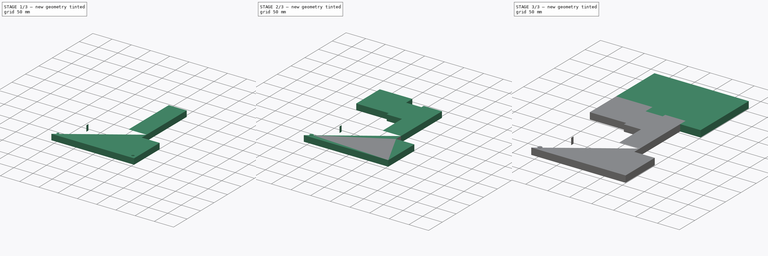
[diagram: build sequence overview — one tinted view per stage of 3, left to right]
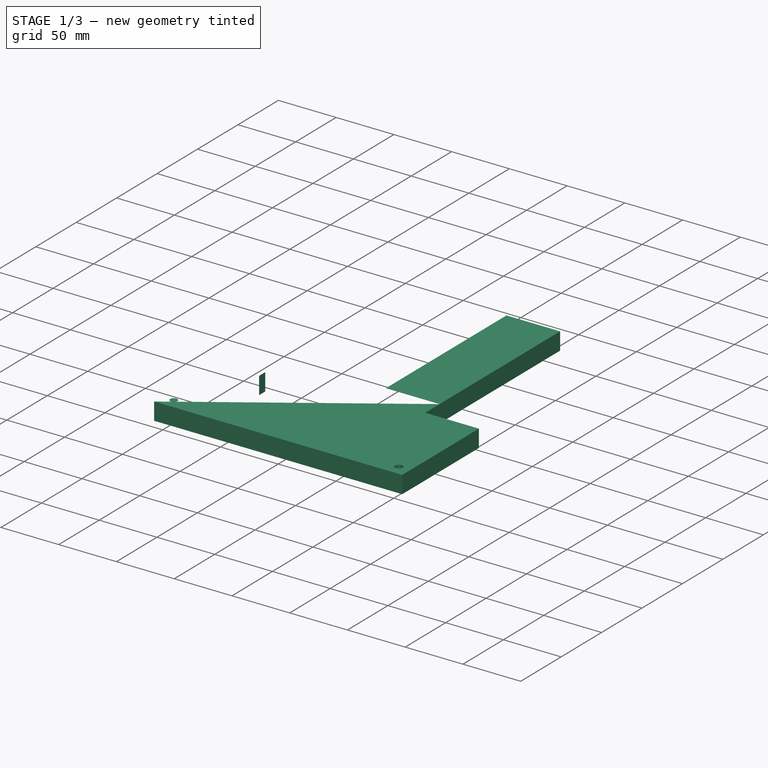
[diagram: stage 1 of 3 — iso view after this stage's code; geometry added in this stage tinted green]
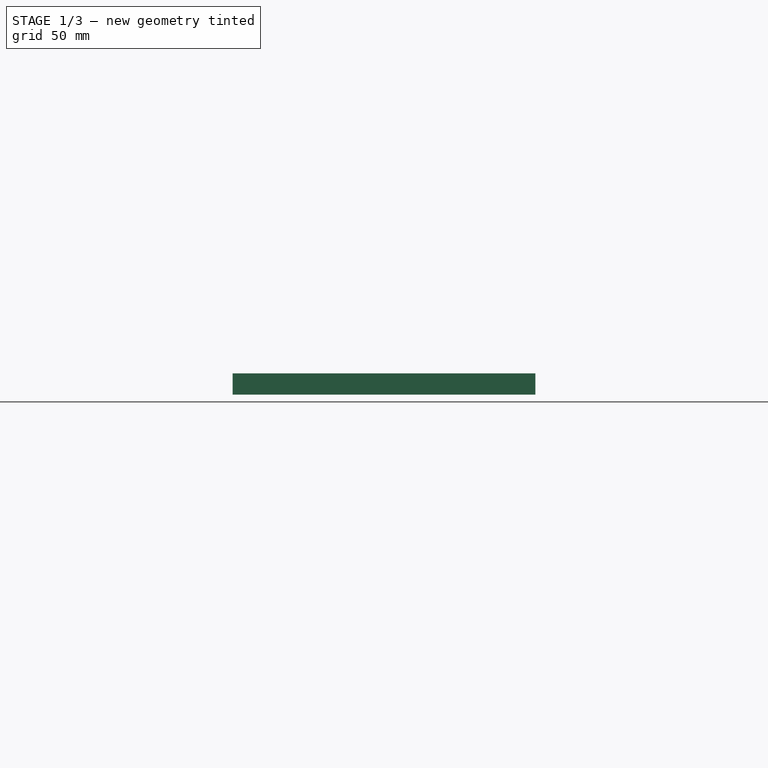
[diagram: stage 1 of 3 — front view after this stage's code; geometry added in this stage tinted green]
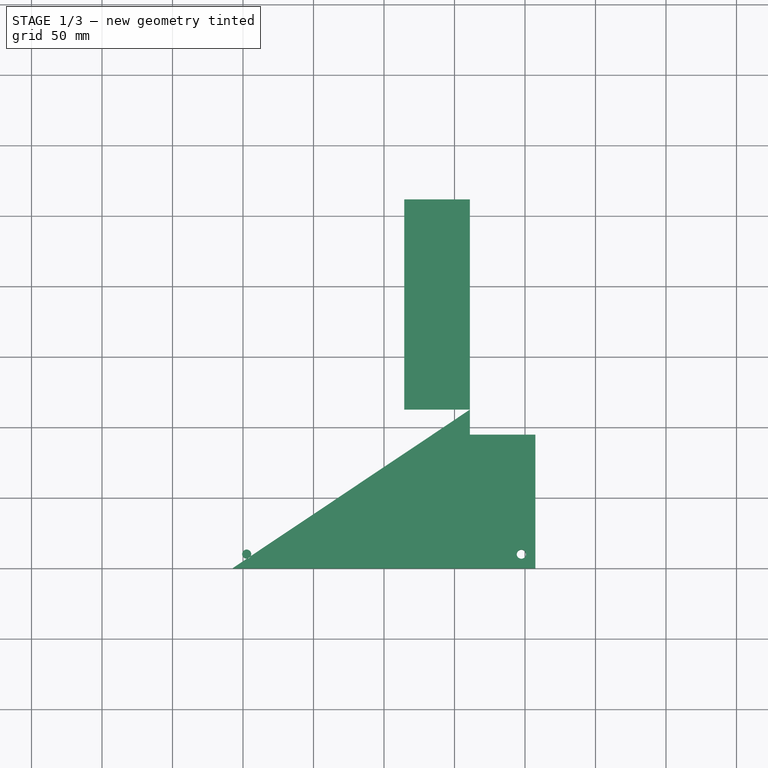
[diagram: stage 1 of 3 — top view after this stage's code; geometry added in this stage tinted green]
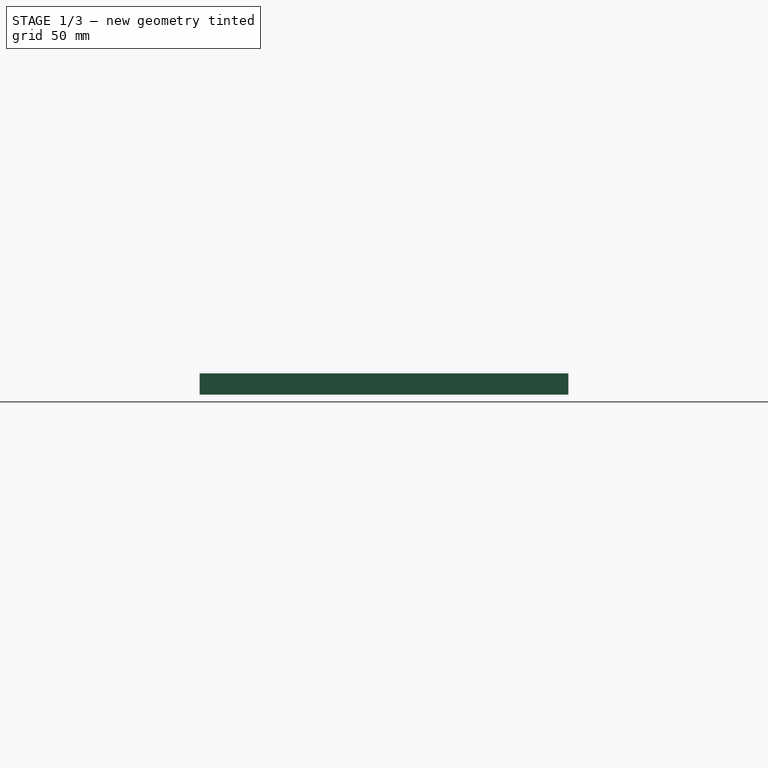
[diagram: stage 1 of 3 — right view after this stage's code; geometry added in this stage tinted green]
FCSTD DOCUMENT  (FreeCAD 0.22R36958 (Git))
Label: juell_bottom_w_title_expanded
License: All rights reserved
LicenseURL: http://en.wikipedia.org/wiki/All_rights_reserved
objects: Part::Part2DObjectPython×22, Sketcher::SketchObject×8, PartDesign::Pad×4, PartDesign::Pocket×4, Spreadsheet::Sheet×1, PartDesign::Body×1
note: 47 computed .brp shape members not serialized (recipe doc carries the construction recipe); baked Part::Feature solids carry a one-line shape summary decoded from their .brp

FEATURE [Spreadsheet::Sheet] Spreadsheet  label="vars"
  cells = A1='height; B1(part_height)=15.1; E1='X; F1='Y; A2='width; B2(width)=125; C2=155; A3='length; B3(length)=255; C3=260; A4='plot long; B4(plot_long)==plot_short * 2.1 + plot_gap_large / 2; A5='plot short; B5(plot_short)==plot_end * 2.2 + plot_gap_small; A6='plot end; B6(plot_end)==plot_gap_large * 1.6; A7='plot gap small; B7(plot_gap_small)=7.5; A8='plot gap large; B8(plot_gap_large)==plot_gap_small * 2; D8=8; A9='plot border; B9(plot_border)=1; A10='border; B10(border)=15; A11='font size; B11(font_size)=13; A12='project offset; B12(project_offset)=150; C12(first_cut)=0; D12(second_cut)=150; E12(third_cut)=300; F12(fourth_cut)=450
FEATURE [Part::Part2DObjectPython] ShapeString  label="Plot29"  # Draft 2D object (typed FeaturePython)
  FontFile = /System/Library/Fonts/Avenir.ttc
  Fuse = false
  Justification = 4
  JustificationReference = 0
  KeepLeftMargin = false
  MakeFace = true
  ObliqueAngle = 0
  Placement = pos=(-60,42.23,15.11) rot=(0,0,1;0rad)
  ScaleToSize = true
  Size = 13
  String = 29
  Tracking = 0
  expr: .Placement.Base.z = <<vars>>.part_height + 0.01
  expr: Size = <<vars>>.font_size
FEATURE [Part::Part2DObjectPython] ShapeString003  label="Plot30"  # Draft 2D object (typed FeaturePython)
  FontFile = /System/Library/Fonts/Avenir.ttc
  Fuse = false
  Justification = 4
  JustificationReference = 0
  KeepLeftMargin = false
  MakeFace = true
  ObliqueAngle = 0
  Placement = pos=(-60,82.85,15.11) rot=(0,0,1;0rad)
  ScaleToSize = true
  Size = 13
  String = 30
  Tracking = 0
  expr: .Placement.Base.z = <<vars>>.part_height + 0.01
  expr: Size = <<vars>>.font_size
FEATURE [Part::Part2DObjectPython] ShapeString004  label="Plot31"  # Draft 2D object (typed FeaturePython)
  FontFile = /Library/Fonts/Arial Unicode.ttf
  Fuse = false
  Justification = 4
  JustificationReference = 0
  KeepLeftMargin = false
  MakeFace = true
  ObliqueAngle = 0
  Placement = pos=(33,78,15.11) rot=(0,0,1;0rad)
  ScaleToSize = true
  Size = 13
  String = 31
  Tracking = 0
  expr: .Placement.Base.z = <<vars>>.part_height + 0.01
  expr: Size = <<vars>>.font_size
FEATURE [Part::Part2DObjectPython] ShapeString005  label="Plot32"  # Draft 2D object (typed FeaturePython)
  FontFile = /Library/Fonts/Arial Unicode.ttf
  Fuse = false
  Justification = 4
  JustificationReference = 0
  KeepLeftMargin = false
  MakeFace = true
  ObliqueAngle = 0
  Placement = pos=(33,106,15.11) rot=(0,0,1;0rad)
  ScaleToSize = true
  Size = 13
  String = 32
  Tracking = 0
  expr: .Placement.Base.z = <<vars>>.part_height + 0.01
  expr: Size = <<vars>>.font_size
FEATURE [Part::Part2DObjectPython] ShapeString006  label="Plot33"  # Draft 2D object (typed FeaturePython)
  FontFile = /Library/Fonts/Arial Unicode.ttf
  Fuse = false
  Justification = 4
  JustificationReference = 0
  KeepLeftMargin = false
  MakeFace = true
  ObliqueAngle = 0
  Placement = pos=(33,133,15.11) rot=(0,0,1;0rad)
  ScaleToSize = true
  Size = 13
  String = 33
  Tracking = 0
  expr: .Placement.Base.z = <<vars>>.part_height + 0.01
  expr: Size = <<vars>>.font_size
FEATURE [Part::Part2DObjectPython] ShapeString007  label="Plot34"  # Draft 2D object (typed FeaturePython)
  FontFile = /Library/Fonts/Arial Unicode.ttf
  Fuse = false
  Justification = 4
  JustificationReference = 0
  KeepLeftMargin = false
  MakeFace = true
  ObliqueAngle = 0
  Placement = pos=(33,161,15.11) rot=(0,0,1;0rad)
  ScaleToSize = true
  Size = 13
  String = 34
  Tracking = 0
  expr: .Placement.Base.z = <<vars>>.part_height + 0.01
  expr: Size = <<vars>>.font_size
FEATURE [Part::Part2DObjectPython] ShapeString008  label="Plot35"  # Draft 2D object (typed FeaturePython)
  FontFile = /Library/Fonts/Arial Unicode.ttf
  Fuse = false
  Justification = 4
  JustificationReference = 0
  KeepLeftMargin = false
  MakeFace = true
  ObliqueAngle = 0
  Placement = pos=(33,189,15.11) rot=(0,0,1;0rad)
  ScaleToSize = true
  Size = 13
  String = 35
  Tracking = 0
  expr: .Placement.Base.z = <<vars>>.part_height + 0.01
  expr: Size = <<vars>>.font_size
FEATURE [Part::Part2DObjectPython] ShapeString009  label="Plot36"  # Draft 2D object (typed FeaturePython)
  FontFile = /Library/Fonts/Arial Unicode.ttf
  Fuse = false
  Justification = 4
  JustificationReference = 0
  KeepLeftMargin = false
  MakeFace = true
  ObliqueAngle = 0
  Placement = pos=(33,217,15.11) rot=(0,0,1;0rad)
  ScaleToSize = true
  Size = 13
  String = 36
  Tracking = 0
  expr: .Placement.Base.z = <<vars>>.part_height + 0.01
  expr: Size = <<vars>>.font_size
FEATURE [Part::Part2DObjectPython] ShapeString010  label="Plot37"  # Draft 2D object (typed FeaturePython)
  FontFile = /Library/Fonts/Arial Unicode.ttf
  Fuse = false
  Justification = 4
  JustificationReference = 0
  KeepLeftMargin = false
  MakeFace = true
  ObliqueAngle = 0
  Placement = pos=(33,245,15.11) rot=(0,0,1;0rad)
  ScaleToSize = true
  Size = 13
  String = 37
  Tracking = 0
  expr: .Placement.Base.z = <<vars>>.part_height + 0.01
  expr: Size = <<vars>>.font_size
FEATURE [Part::Part2DObjectPython] ShapeString011  label="Plot28"  # Draft 2D object (typed FeaturePython)
  FontFile = /Library/Fonts/Arial Unicode.ttf
  Fuse = false
  Justification = 4
  JustificationReference = 0
  KeepLeftMargin = false
  MakeFace = true
  ObliqueAngle = 0
  Placement = pos=(74.5,236,15.11) rot=(0,0,1;0rad)
  ScaleToSize = true
  Size = 13
  String = 28
  Tracking = 0
  expr: .Placement.Base.z = <<vars>>.part_height + 0.01
  expr: Size = <<vars>>.font_size
FEATURE [Part::Part2DObjectPython] ShapeString012  label="Plot27"  # Draft 2D object (typed FeaturePython)
  FontFile = /Library/Fonts/Arial Unicode.ttf
  Fuse = false
  Justification = 4
  JustificationReference = 0
  KeepLeftMargin = false
  MakeFace = true
  ObliqueAngle = 0
  Placement = pos=(74.5,189,15.11) rot=(0,0,1;0rad)
  ScaleToSize = true
  Size = 13
  String = 27
  Tracking = 0
  expr: .Placement.Base.z = <<vars>>.part_height + 0.01
  expr: Size = <<vars>>.font_size
FEATURE [Part::Part2DObjectPython] ShapeString013  label="Plot26"  # Draft 2D object (typed FeaturePython)
  FontFile = /Library/Fonts/Arial Unicode.ttf
  Fuse = false
  Justification = 4
  JustificationReference = 0
  KeepLeftMargin = false
  MakeFace = true
  ObliqueAngle = 0
  Placement = pos=(74.5,143,15.11) rot=(0,0,1;0rad)
  ScaleToSize = true
  Size = 13
  String = 26
  Tracking = 0
  expr: .Placement.Base.z = <<vars>>.part_height + 0.01
  expr: Size = <<vars>>.font_size
FEATURE [Part::Part2DObjectPython] ShapeString014  label="Plot25"  # Draft 2D object (typed FeaturePython)
  FontFile = /Library/Fonts/Arial Unicode.ttf
  Fuse = false
  Justification = 4
  JustificationReference = 0
  KeepLeftMargin = false
  MakeFace = true
  ObliqueAngle = 0
  Placement = pos=(74.5,97,15.11) rot=(0,0,1;0rad)
  ScaleToSize = true
  Size = 13
  String = 25
  Tracking = 0
  expr: .Placement.Base.z = <<vars>>.part_height + 0.01
  expr: Size = <<vars>>.font_size
FEATURE [Part::Part2DObjectPython] ShapeString015  label="Plot24"  # Draft 2D object (typed FeaturePython)
  FontFile = /System/Library/Fonts/ヒラギノ角ゴシック W9.ttc
  Fuse = false
  Justification = 4
  JustificationReference = 0
  KeepLeftMargin = false
  MakeFace = true
  ObliqueAngle = 0
  Placement = pos=(68,48,15.11) rot=(0,0,1;0rad)
  ScaleToSize = true
  Size = 13
  String = 24
  Tracking = 0
  expr: .Placement.Base.z = <<vars>>.part_height + 0.01
  expr: Size = <<vars>>.font_size
FEATURE [Part::Part2DObjectPython] ShapeString016  label="Plot19"  # Draft 2D object (typed FeaturePython)
  FontFile = /Library/Fonts/Arial Unicode.ttf
  Fuse = false
  Justification = 4
  JustificationReference = 0
  KeepLeftMargin = false
  MakeFace = true
  ObliqueAngle = 0
  Placement = pos=(106.5,49,15.11) rot=(0,0,1;0rad)
  ScaleToSize = true
  Size = 13
  String = 19
  Tracking = 0
  expr: .Placement.Base.z = <<vars>>.part_height + 0.01
  expr: Size = <<vars>>.font_size
FEATURE [Part::Part2DObjectPython] ShapeString017  label="Plot20"  # Draft 2D object (typed FeaturePython)
  FontFile = /Library/Fonts/Arial Unicode.ttf
  Fuse = false
  Justification = 4
  JustificationReference = 0
  KeepLeftMargin = false
  MakeFace = true
  ObliqueAngle = 0
  Placement = pos=(106.5,97,15.11) rot=(0,0,1;0rad)
  ScaleToSize = true
  Size = 13
  String = 20
  Tracking = 0
  expr: .Placement.Base.z = <<vars>>.part_height + 0.01
  expr: Size = <<vars>>.font_size
FEATURE [Part::Part2DObjectPython] ShapeString018  label="Plot21"  # Draft 2D object (typed FeaturePython)
  FontFile = /Library/Fonts/Arial Unicode.ttf
  Fuse = false
  Justification = 4
  JustificationReference = 0
  KeepLeftMargin = false
  MakeFace = true
  ObliqueAngle = 0
  Placement = pos=(106.5,143,15.11) rot=(0,0,1;0rad)
  ScaleToSize = true
  Size = 13
  String = 21
  Tracking = 0
  expr: .Placement.Base.z = <<vars>>.part_height + 0.01
  expr: Size = <<vars>>.font_size
FEATURE [Part::Part2DObjectPython] ShapeString019  label="Plot22"  # Draft 2D object (typed FeaturePython)
  FontFile = /Library/Fonts/Arial Unicode.ttf
  Fuse = false
  Justification = 4
  JustificationReference = 0
  KeepLeftMargin = false
  MakeFace = true
  ObliqueAngle = 0
  Placement = pos=(67.8,115,15.11) rot=(0,0,1;0rad)
  ScaleToSize = true
  Size = 13
  String = 22
  Tracking = 0
  expr: .Placement.Base.z = <<vars>>.part_height + 0.01
  expr: Size = <<vars>>.font_size
FEATURE [Part::Part2DObjectPython] ShapeString020  label="Plot23"  # Draft 2D object (typed FeaturePython)
  FontFile = /Library/Fonts/Arial Unicode.ttf
  Fuse = false
  Justification = 4
  JustificationReference = 0
  KeepLeftMargin = false
  MakeFace = true
  ObliqueAngle = 0
  Placement = pos=(106.5,236,15.11) rot=(0,0,1;0rad)
  ScaleToSize = true
  Size = 13
  String = 23
  Tracking = 0
  expr: .Placement.Base.z = <<vars>>.part_height + 0.01
  expr: Size = <<vars>>.font_size
FEATURE [Part::Part2DObjectPython] ShapeString021  label="Plot38"  # Draft 2D object (typed FeaturePython)
  FontFile = /Library/Fonts/Arial Unicode.ttf
  Fuse = false
  Justification = 4
  JustificationReference = 0
  KeepLeftMargin = false
  MakeFace = true
  ObliqueAngle = 0
  Placement = pos=(23,79,15.11) rot=(0,0,1;0rad)
  ScaleToSize = true
  Size = 13
  String = 38
  Tracking = 0
  expr: .Placement.Base.z = <<vars>>.part_height + 0.01
  expr: Size = <<vars>>.font_size
FEATURE [Part::Part2DObjectPython] ShapeString022  label="Plot39"  # Draft 2D object (typed FeaturePython)
  FontFile = /Library/Fonts/Arial Unicode.ttf
  Fuse = false
  Justification = 4
  JustificationReference = 0
  KeepLeftMargin = false
  MakeFace = true
  ObliqueAngle = 0
  Placement = pos=(137.75,112,15.11) rot=(0,0,1;0rad)
  ScaleToSize = true
  Size = 13
  String = 39
  Tracking = 0
  expr: .Placement.Base.z = <<vars>>.part_height + 0.01
  expr: Size = <<vars>>.font_size
FEATURE [Part::Part2DObjectPython] ShapeString023  label="Plot40"  # Draft 2D object (typed FeaturePython)
  FontFile = /Library/Fonts/Arial Unicode.ttf
  Fuse = false
  Justification = 4
  JustificationReference = 0
  KeepLeftMargin = false
  MakeFace = true
  ObliqueAngle = 0
  Placement = pos=(137.75,30,15.11) rot=(0,0,1;0rad)
  ScaleToSize = true
  Size = 13
  String = 40
  Tracking = 0
  expr: .Placement.Base.z = <<vars>>.part_height + 0.01
  expr: Size = <<vars>>.font_size
FEATURE [Sketcher::SketchObject] Sketch
  AttachmentSupport = -> [XY_Plane]
  FullyConstrained = true
  MapMode = 5
  expr: Constraints[16] = <<vars>>.border + <<vars>>.plot_short + <<vars>>.plot_gap_large / 2
  expr: Constraints[17] = <<vars>>.plot_end * 2 + <<vars>>.plot_gap_large * 2.5
  expr: Constraints[19] = <<vars>>.border + <<vars>>.plot_short + <<vars>>.plot_end / 2 + <<vars>>.plot_gap_large / 2
  expr: Constraints[20] = <<vars>>.border * 2 + <<vars>>.plot_end * 3 + <<vars>>.plot_short + <<vars>>.plot_gap_large * 3.5
  expr: Constraints[24] = <<vars>>.project_offset
  expr: Constraints[27] = <<vars>>.plot_gap_small
  expr: Constraints[6] = <<vars>>.border + <<vars>>.plot_end * 2.5 + <<vars>>.plot_gap_large * 2
  sketch-geometry (12):
    g0: LineSegment StartX=-107.4 StartY=-150 StartZ=0 EndX=107.4 EndY=-150 EndZ=0
    g1: LineSegment StartX=107.4 StartY=-150 StartZ=0 EndX=107.4 EndY=-55.2 EndZ=0
    g2: LineSegment StartX=-107.4 StartY=-45 StartZ=0 EndX=-107.4 EndY=-150 EndZ=0
    g3: LineSegment StartX=-107.4 StartY=-45 StartZ=0 EndX=-24.6 EndY=-45 EndZ=0
    g4: LineSegment StartX=-24.6 StartY=-45 StartZ=0 EndX=-24.6 EndY=-37.5 EndZ=0
    g5: LineSegment StartX=-24.6 StartY=-37.5 StartZ=0 EndX=60.9 EndY=-37.5 EndZ=0
    g6: LineSegment StartX=60.9 StartY=-37.5 StartZ=0 EndX=60.9 EndY=-55.2 EndZ=0
    g7: LineSegment StartX=60.9 StartY=-55.2 StartZ=0 EndX=107.4 EndY=-55.2 EndZ=0
    g8: GeomPoint X=0 Y=-150 Z=0
    g9: LineSegment StartX=-107.4 StartY=-150 StartZ=0 EndX=107.4 EndY=-150 EndZ=0
    g10: Circle CenterX=-97.4 CenterY=-140 CenterZ=0 NormalX=0 NormalY=0 NormalZ=1 AngleXU=0 Radius=3.25
    g11: Circle CenterX=97.4 CenterY=-140 CenterZ=0 NormalX=0 NormalY=0 NormalZ=1 AngleXU=0 Radius=3.25
  constraints (34):
    c: Coincident(g0,g1)
    c: Coincident(g2,g0)
    c: Horizontal(g0)
    c: Vertical(g1)
    c: Vertical(g2)
    c: Coincident(g0,g-1)
    c: DistanceY(g2,g2) = 105
    c: Horizontal(g3)
    c: Coincident(g3,g4)
    c: Vertical(g4)
    c: Coincident(g4,g5)
    c: Horizontal(g5)
    c: Coincident(g5,g6)
    c: Vertical(g6)
    c: Coincident(g6,g7)
    c: Coincident(g7,g1)
    c: DistanceX(g3,g3) = 82.8
    c: DistanceX(g5,g5) = 85.5
    c: Angle(g7,g1) = 1.5708
    c: DistanceY(g1,g1) = 94.8
    c: DistanceX(g0,g0) = 214.8
    c: Coincident(g3,g2)
    c: PointOnObject(g8,g-2)
    c: Symmetric(g0,g0,g8)
    c: DistanceY(g8,g-1) = 150
    c: Coincident(g9,g0)
    c: Coincident(g9,g0)
    c: DistanceY(g3,g4) = 7.5
    c: Equal(g10,g11)
    c: Diameter(g10) = 6.5
    c: DistanceX(g0,g10) = 10
    c: DistanceY(g0,g10) = 10
    c: DistanceX(g11,g0) = 10
    c: DistanceY(g0,g11) = 10
FEATURE [PartDesign::Pad] Pad
  Direction = (0,0,1)
  Length = 15.1
  Length2 = 10
  Profile = -> Sketch
  ReferenceAxis = -> Sketch [N_Axis]
  Suppressed = false
  Type = 0
  expr: Length = <<vars>>.part_height
FEATURE [Sketcher::SketchObject] Sketch001
  AttachmentSupport = -> [Pad]
  ExternalGeometry = -> [Pad]
  FullyConstrained = true
  MapMode = 5
  Placement = pos=(0,0,0) rot=(1,0,0;3.14159rad)
  expr: Constraints[116] = <<vars>>.plot_border
  expr: Constraints[117] = <<vars>>.plot_border
  expr: Constraints[118] = <<vars>>.plot_short
  expr: Constraints[119] = <<vars>>.plot_end
  expr: Constraints[120] = <<vars>>.plot_short + <<vars>>.plot_border * 2
  expr: Constraints[121] = <<vars>>.plot_end + <<vars>>.plot_border * 2
  expr: Constraints[138] = <<vars>>.plot_border
  expr: Constraints[139] = <<vars>>.plot_border
  expr: Constraints[145] = <<vars>>.plot_gap_large
  expr: Constraints[146] = <<vars>>.plot_gap_large
  expr: Constraints[147] = <<vars>>.plot_gap_large
  expr: Constraints[24] = <<vars>>.plot_end
  expr: Constraints[25] = <<vars>>.plot_end / 2
  expr: Constraints[26] = <<vars>>.border
  expr: Constraints[27] = <<vars>>.border + <<vars>>.plot_border
  expr: Constraints[28] = <<vars>>.plot_short
  expr: Constraints[29] = <<vars>>.plot_end / 2 + <<vars>>.plot_border * 2
  expr: Constraints[30] = <<vars>>.plot_end + <<vars>>.plot_border * 2
  expr: Constraints[31] = <<vars>>.plot_end * 2 + <<vars>>.plot_gap_large + <<vars>>.plot_border
  expr: Constraints[32] = <<vars>>.plot_end * 2 + <<vars>>.plot_gap_large + <<vars>>.plot_border
  expr: Constraints[33] = <<vars>>.plot_short + <<vars>>.plot_border * 2
  expr: Constraints[35] = <<vars>>.third_cut + 10
  expr: Constraints[36] = <<vars>>.plot_end / 2 + <<vars>>.plot_border * 2
  expr: Constraints[37] = <<vars>>.third_cut + 10 + <<vars>>.border
  expr: Constraints[38] = <<vars>>.plot_short + <<vars>>.plot_border * 2 + <<vars>>.border + <<vars>>.third_cut + 10 + <<vars>>.plot_end / 2
  expr: Constraints[39] = <<vars>>.third_cut + 10 + <<vars>>.border + <<vars>>.plot_border
  expr: Constraints[40] = <<vars>>.third_cut + 10 + <<vars>>.plot_end / 2 + <<vars>>.plot_border + <<vars>>.border
  expr: Constraints[41] = <<vars>>.plot_short
  expr: Constraints[69] = <<vars>>.plot_end
  expr: Constraints[70] = <<vars>>.plot_short
  expr: Constraints[71] = <<vars>>.plot_short + <<vars>>.plot_border * 2
  expr: Constraints[89] = <<vars>>.plot_short
  expr: Constraints[90] = <<vars>>.plot_end
  expr: Constraints[91] = <<vars>>.plot_short + <<vars>>.plot_border * 2
  expr: Constraints[92] = <<vars>>.plot_end + <<vars>>.plot_border * 2
  expr: Constraints[93] = <<vars>>.plot_border
  expr: Constraints[94] = <<vars>>.plot_border
  expr: Constraints[97] = <<vars>>.plot_gap_large
  expr: Constraints[98] = <<vars>>.border
  expr: Constraints[99] = <<vars>>.plot_border
  sketch-geometry (49):
    g0: LineSegment StartX=91.4 StartY=88.3 StartZ=0 EndX=91.4 EndY=16 EndZ=0
    g1: LineSegment StartX=91.4 StartY=16 StartZ=0 EndX=3.4 EndY=16 EndZ=0
    g2: LineSegment StartX=3.4 StartY=16 StartZ=0 EndX=3.4 EndY=28 EndZ=0
    g3: LineSegment StartX=3.4 StartY=28 StartZ=0 EndX=67.4 EndY=28 EndZ=0
    g4: LineSegment StartX=67.4 StartY=28 StartZ=0 EndX=67.4 EndY=88.3 EndZ=0
    g5: LineSegment StartX=67.4 StartY=88.3 StartZ=0 EndX=91.4 EndY=88.3 EndZ=0
    g6: LineSegment StartX=92.4 StartY=89.3 StartZ=0 EndX=92.4 EndY=15 EndZ=0
    g7: LineSegment StartX=92.4 StartY=15 StartZ=0 EndX=2.4 EndY=15 EndZ=0
    g8: LineSegment StartX=2.4 StartY=15 StartZ=0 EndX=2.4 EndY=29 EndZ=0
    g9: LineSegment StartX=2.4 StartY=29 StartZ=0 EndX=66.4 EndY=29 EndZ=0
    g10: LineSegment StartX=66.4 StartY=29 StartZ=0 EndX=66.4 EndY=89.3 EndZ=0
    g11: LineSegment StartX=66.4 StartY=89.3 StartZ=0 EndX=92.4 EndY=89.3 EndZ=0
    g12: GeomPoint X=0 Y=-310 Z=0
    g13: LineSegment StartX=-30.1 StartY=70 StartZ=0 EndX=-30.1 EndY=96 EndZ=0
    g14: LineSegment StartX=-30.1 StartY=96 StartZ=0 EndX=-92.4 EndY=96 EndZ=0
    g15: LineSegment StartX=-92.4 StartY=96 StartZ=0 EndX=-92.4 EndY=70 EndZ=0
    g16: LineSegment StartX=-92.4 StartY=70 StartZ=0 EndX=-30.1 EndY=70 EndZ=0
    g17: LineSegment StartX=-31.1 StartY=71 StartZ=0 EndX=-31.1 EndY=95 EndZ=0
    g18: LineSegment StartX=-31.1 StartY=95 StartZ=0 EndX=-91.4 EndY=95 EndZ=0
    g19: LineSegment StartX=-91.4 StartY=95 StartZ=0 EndX=-91.4 EndY=71 EndZ=0
    g20: LineSegment StartX=-91.4 StartY=71 StartZ=0 EndX=-31.1 EndY=71 EndZ=0
    g21: LineSegment StartX=-30.1 StartY=70 StartZ=0 EndX=-31.1 EndY=71 EndZ=0
    g22: LineSegment StartX=-30.1 StartY=96 StartZ=0 EndX=-31.1 EndY=95 EndZ=0
    g23: LineSegment StartX=-92.4 StartY=96 StartZ=0 EndX=-91.4 EndY=95 EndZ=0
    g24: LineSegment StartX=-92.4 StartY=70 StartZ=0 EndX=-91.4 EndY=71 EndZ=0
    g25: LineSegment StartX=-92.4 StartY=55 StartZ=0 EndX=-92.4 EndY=29 EndZ=0
    g26: LineSegment StartX=-92.4 StartY=29 StartZ=0 EndX=-30.1 EndY=29 EndZ=0
    g27: LineSegment StartX=-30.1 StartY=29 StartZ=0 EndX=-30.1 EndY=55 EndZ=0
    g28: LineSegment StartX=-30.1 StartY=55 StartZ=0 EndX=-92.4 EndY=55 EndZ=0
    g29: LineSegment StartX=-91.4 StartY=54 StartZ=0 EndX=-91.4 EndY=30 EndZ=0
    g30: LineSegment StartX=-91.4 StartY=30 StartZ=0 EndX=-31.1 EndY=30 EndZ=0
    g31: LineSegment StartX=-31.1 StartY=30 StartZ=0 EndX=-31.1 EndY=54 EndZ=0
    g32: LineSegment StartX=-31.1 StartY=54 StartZ=0 EndX=-91.4 EndY=54 EndZ=0
    g33: LineSegment StartX=25.9 StartY=106.3 StartZ=0 EndX=25.9 EndY=44 EndZ=0
    g34: LineSegment StartX=25.9 StartY=44 StartZ=0 EndX=51.9 EndY=44 EndZ=0
    g35: LineSegment StartX=51.9 StartY=44 StartZ=0 EndX=51.9 EndY=106.3 EndZ=0
    g36: LineSegment StartX=51.9 StartY=106.3 StartZ=0 EndX=25.9 EndY=106.3 EndZ=0
    g37: LineSegment StartX=50.9 StartY=45 StartZ=0 EndX=50.9 EndY=105.3 EndZ=0
    g38: LineSegment StartX=50.9 StartY=105.3 StartZ=0 EndX=26.9 EndY=105.3 EndZ=0
    g39: LineSegment StartX=26.9 StartY=105.3 StartZ=0 EndX=26.9 EndY=45 EndZ=0
    g40: LineSegment StartX=26.9 StartY=45 StartZ=0 EndX=50.9 EndY=45 EndZ=0
    g41: LineSegment StartX=-15.1 StartY=106.3 StartZ=0 EndX=-15.1 EndY=44 EndZ=0
    g42: LineSegment StartX=-15.1 StartY=44 StartZ=0 EndX=10.9 EndY=44 EndZ=0
    g43: LineSegment StartX=10.9 StartY=44 StartZ=0 EndX=10.9 EndY=106.3 EndZ=0
    g44: LineSegment StartX=10.9 StartY=106.3 StartZ=0 EndX=-15.1 EndY=106.3 EndZ=0
    g45: LineSegment StartX=9.9 StartY=45 StartZ=0 EndX=9.9 EndY=105.3 EndZ=0
    g46: LineSegment StartX=9.9 StartY=105.3 StartZ=0 EndX=-14.1 EndY=105.3 EndZ=0
    g47: LineSegment StartX=-14.1 StartY=105.3 StartZ=0 EndX=-14.1 EndY=45 EndZ=0
    g48: LineSegment StartX=-14.1 StartY=45 StartZ=0 EndX=9.9 EndY=45 EndZ=0
  constraints (148):
    c: Vertical(g0)
    c: Coincident(g0,g1)
    c: Horizontal(g1)
    c: Coincident(g1,g2)
    c: Coincident(g2,g3)
    c: Horizontal(g3)
    c: Coincident(g3,g4)
    c: Vertical(g4)
    c: Coincident(g4,g5)
    c: Coincident(g5,g0)
    c: Vertical(g6)
    c: Coincident(g6,g7)
    c: Horizontal(g7)
    c: Coincident(g7,g8)
    c: Vertical(g8)
    c: Coincident(g8,g9)
    c: Horizontal(g9)
    c: Coincident(g9,g10)
    c: Vertical(g10)
    c: Coincident(g10,g11)
    c: Coincident(g11,g6)
    c: Horizontal(g11)
    c: Parallel(g11,g5)
    c: Vertical(g2)
    c: DistanceX(g5,g5) = 24
    c: DistanceY(g2,g2) = 12
    c: Distance(g6,g-3) = 15
    c: Distance(g0,g-3) = 16
    c: DistanceY(g0,g0) = 60.3
    c: DistanceY(g8,g8) = 14
    c: DistanceX(g11,g11) = 26
    c: DistanceX(g3,g3) = 64
    c: DistanceX(g9,g9) = 64
    c: DistanceY(g6,g6) = 62.3
    c: PointOnObject(g12,g-2)
    c: Distance(g12,g-4) = 310
    c: DistanceY(g8,g8) = 14
    c: DistanceY(g12,g7) = 325
    c: DistanceY(g12,g6) = 399.3
    c: DistanceY(g12,g1) = 326
    c: DistanceY(g12,g2) = 338
    c: DistanceY(g4,g4) = 60.3
    c: Coincident(g13,g14)
    c: Coincident(g14,g15)
    c: Coincident(g15,g16)
    c: Coincident(g16,g13)
    c: Vertical(g13)
    c: Vertical(g15)
    c: Horizontal(g14)
    c: Horizontal(g16)
    c: Coincident(g17,g18)
    c: Coincident(g18,g19)
    c: Coincident(g19,g20)
    c: Coincident(g20,g17)
    c: Vertical(g17)
    c: Vertical(g19)
    c: Horizontal(g18)
    c: Horizontal(g20)
    c: Coincident(g21,g13)
    c: Coincident(g21,g17)
    c: Coincident(g22,g14)
    c: Coincident(g22,g18)
    c: Coincident(g23,g15)
    c: Coincident(g23,g19)
    c: Coincident(g24,g16)
    c: Coincident(g24,g20)
    c: Perpendicular(g21,g22)
    c: Perpendicular(g22,g23)
    c: Perpendicular(g23,g24)
    c: DistanceY(g19,g19) = 24
    c: DistanceX(g18,g18) = 60.3
    c: DistanceX(g14,g14) = 62.3
    c: Horizontal(g13,g2)
    c: Coincident(g25,g26)
    c: Coincident(g26,g27)
    c: Coincident(g27,g28)
    c: Coincident(g28,g25)
    c: Vertical(g25)
    c: Vertical(g27)
    c: Horizontal(g26)
    c: Horizontal(g28)
    c: Coincident(g29,g30)
    c: Coincident(g30,g31)
    c: Coincident(g31,g32)
    c: Coincident(g32,g29)
    c: Vertical(g29)
    c: Vertical(g31)
    c: Horizontal(g30)
    c: Horizontal(g32)
    c: DistanceX(g32,g32) = 60.3
    c: DistanceY(g29,g29) = 24
    c: DistanceX(g28,g28) = 62.3
    c: DistanceY(g25,g25) = 26
    c: DistanceX(g25,g29) = 1
    c: DistanceY(g31,g27) = 1
    c: Vertical(g27,g13)
    c: Horizontal(g26,g8)
    c: DistanceY(g27,g13) = 15
    c: Distance(g25,g-5) = 15
    c: DistanceX(g7,g1) = 1
    c: Coincident(g33,g34)
    c: Coincident(g34,g35)
    c: Coincident(g35,g36)
    c: Coincident(g36,g33)
    c: Vertical(g33)
    c: Vertical(g35)
    c: Horizontal(g34)
    c: Horizontal(g36)
    c: Coincident(g37,g38)
    c: Coincident(g38,g39)
    c: Coincident(g39,g40)
    c: Coincident(g40,g37)
    c: Vertical(g37)
    c: Vertical(g39)
    c: Horizontal(g38)
    c: Horizontal(g40)
    c: DistanceX(g33,g38) = 1
    c: DistanceY(g34,g37) = 1
    c: DistanceY(g39,g39) = 60.3
    c: DistanceX(g38,g38) = 24
    c: DistanceY(g33,g33) = 62.3
    c: DistanceX(g36,g36) = 26
    c: Coincident(g41,g42)
    c: Coincident(g42,g43)
    c: Coincident(g43,g44)
    c: Coincident(g44,g41)
    c: Vertical(g41)
    c: Vertical(g43)
    c: Horizontal(g42)
    c: Horizontal(g44)
    c: Coincident(g45,g46)
    c: Coincident(g46,g47)
    c: Coincident(g47,g48)
    c: Coincident(g48,g45)
    c: Vertical(g45)
    c: Vertical(g47)
    c: Horizontal(g46)
    c: Horizontal(g48)
    c: DistanceX(g41,g46) = 1
    c: DistanceY(g42,g45) = 1
    c: Equal(g46,g38)
    c: Equal(g44,g36)
    c: Equal(g43,g33)
    c: Equal(g45,g39)
    c: Horizontal(g43,g33)
    c: DistanceX(g43,g33) = 15
    c: DistanceY(g8,g42) = 15
    c: DistanceX(g27,g41) = 15
FEATURE [PartDesign::Pocket] Pocket
  BaseFeature = -> Pad
  Direction = (0,0,1)
  Length = 2
  Length2 = 5
  Profile = -> Sketch001
  ReferenceAxis = -> Sketch001 [N_Axis]
  Suppressed = false
  Type = 0
FEATURE [Sketcher::SketchObject] Sketch002
  AttachmentSupport = -> [XY_Plane]
  ExternalGeometry = -> [Pocket]
  FullyConstrained = true
  MapMode = 5
  expr: Constraints[25] = <<vars>>.plot_long + <<vars>>.plot_gap_large
  expr: Constraints[26] = <<vars>>.border + <<vars>>.plot_end + <<vars>>.plot_gap_large / 2
  expr: Constraints[27] = <<vars>>.plot_end * 2 + <<vars>>.plot_gap_large * 2.5
  expr: Constraints[28] = <<vars>>.plot_end * 2 + <<vars>>.plot_gap_large * 2.5
  expr: Constraints[29] = <<vars>>.plot_gap_small
  sketch-geometry (12):
    g0: LineSegment StartX=-107.4 StartY=0 StartZ=0 EndX=60.9 EndY=112.5 EndZ=0
    g1: LineSegment StartX=60.9 StartY=112.5 StartZ=0 EndX=-24.6 EndY=112.5 EndZ=0
    g2: LineSegment StartX=-24.6 StartY=112.5 StartZ=0 EndX=-24.6 EndY=105 EndZ=0
    g3: LineSegment StartX=-24.6 StartY=105 StartZ=0 EndX=-24.6 EndY=112.5 EndZ=0
    g4: LineSegment StartX=-24.6 StartY=112.5 StartZ=0 EndX=60.9 EndY=112.5 EndZ=0
    g5: LineSegment StartX=60.9 StartY=112.5 StartZ=0 EndX=60.9 EndY=261.63 EndZ=0
    g6: LineSegment StartX=60.9 StartY=261.63 StartZ=0 EndX=14.4 EndY=261.63 EndZ=0
    g7: LineSegment StartX=14.4 StartY=261.63 StartZ=0 EndX=14.4 EndY=78 EndZ=0
    g8: LineSegment StartX=14.4 StartY=78 StartZ=0 EndX=-71.1 EndY=78 EndZ=0
    g9: LineSegment StartX=-71.1 StartY=78 StartZ=0 EndX=-71.1 EndY=85.5 EndZ=0
    g10: LineSegment StartX=-71.1 StartY=85.5 StartZ=0 EndX=-107.4 EndY=85.5 EndZ=0
    g11: LineSegment StartX=-107.4 StartY=85.5 StartZ=0 EndX=-107.4 EndY=0 EndZ=0
  constraints (30):
    c: Coincident(g-3,g0)
    c: Coincident(g0,g-4)
    c: Coincident(g0,g1)
    c: Coincident(g1,g-5)
    c: Coincident(g1,g2)
    c: Coincident(g2,g-6)
    c: Coincident(g2,g3)
    c: Coincident(g3,g-7)
    c: Coincident(g3,g4)
    c: Coincident(g4,g-7)
    c: Coincident(g4,g5)
    c: Vertical(g5)
    c: Coincident(g5,g6)
    c: Horizontal(g6)
    c: Coincident(g6,g7)
    c: Vertical(g7)
    c: Coincident(g7,g8)
    c: Horizontal(g8)
    c: Coincident(g8,g9)
    c: Vertical(g9)
    c: Coincident(g9,g10)
    c: Horizontal(g10)
    c: Coincident(g10,g11)
    c: Coincident(g11,g0)
    c: Vertical(g11)
    c: DistanceY(g5,g5) = 149.13
    c: DistanceX(g6,g6) = 46.5
    c: DistanceX(g8,g8) = 85.5
    c: DistanceY(g11,g11) = 85.5
    c: DistanceY(g9,g9) = 7.5
FEATURE [PartDesign::Pad] Pad001
  BaseFeature = -> Pocket
  Direction = (0,0,1)
  Length = 15.1
  Length2 = 10
  Profile = -> Sketch002
  ReferenceAxis = -> Sketch002 [N_Axis]
  Suppressed = false
  Type = 0
  expr: Length = <<vars>>.part_height
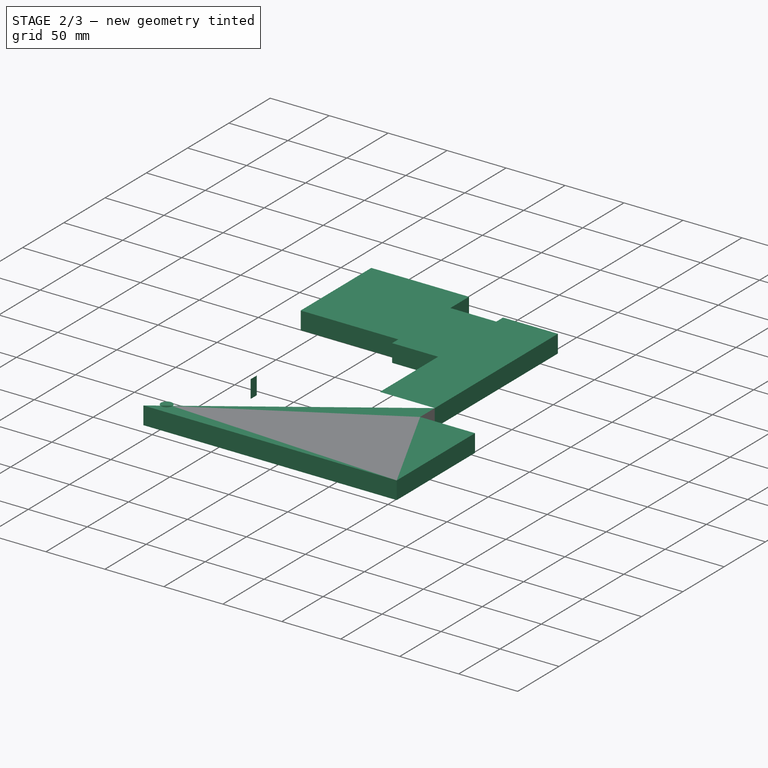
[diagram: stage 2 of 3 — iso view after this stage's code; geometry added in this stage tinted green]
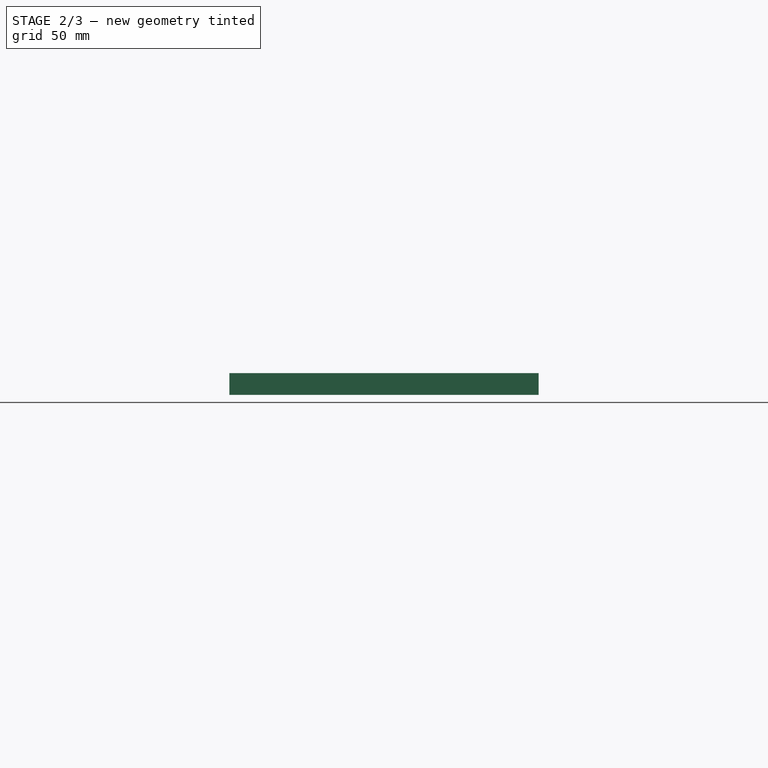
[diagram: stage 2 of 3 — front view after this stage's code; geometry added in this stage tinted green]
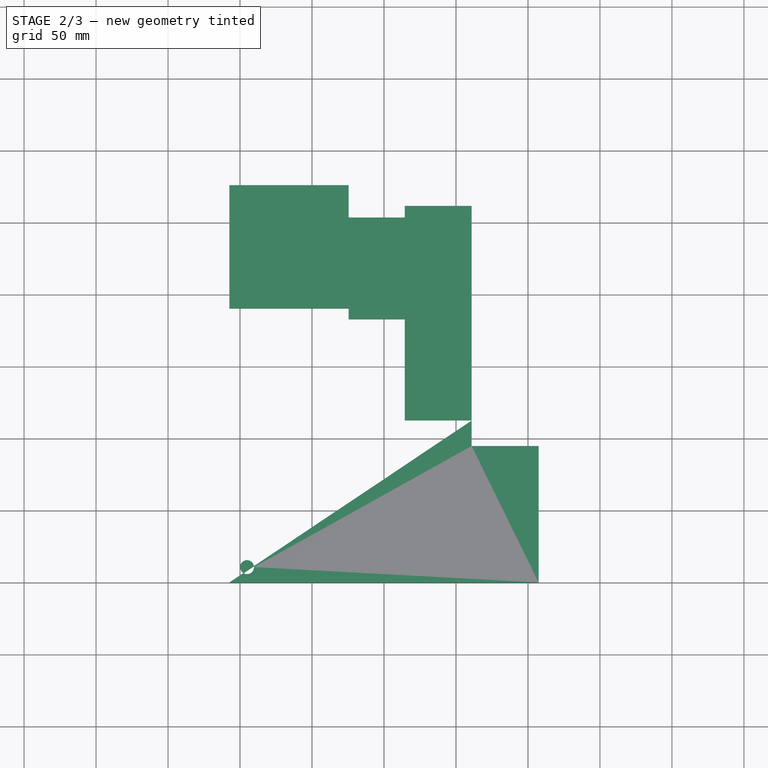
[diagram: stage 2 of 3 — top view after this stage's code; geometry added in this stage tinted green]
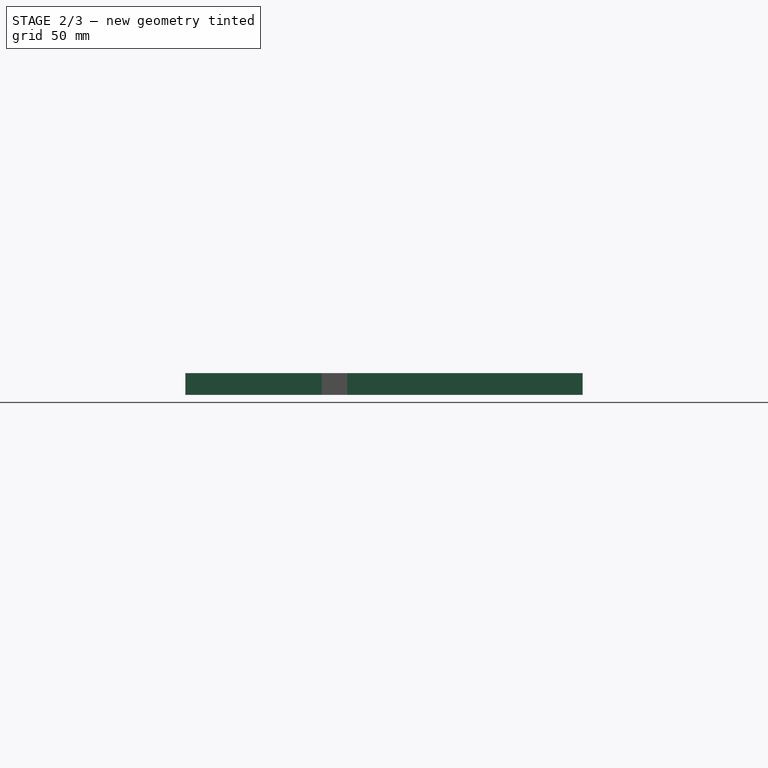
[diagram: stage 2 of 3 — right view after this stage's code; geometry added in this stage tinted green]
FEATURE [Sketcher::SketchObject] Sketch003
  AttachmentSupport = -> [Pad001]
  ExternalGeometry = -> [Pad001]
  FullyConstrained = false
  MapMode = 5
  Placement = pos=(0,85.5,0) rot=(0,0.707107,0.707107;3.14159rad)
  expr: Constraints[100] = <<vars>>.plot_border
  expr: Constraints[101] = <<vars>>.plot_border
  expr: Constraints[102] = <<vars>>.plot_border
  expr: Constraints[103] = <<vars>>.plot_border
  expr: Constraints[104] = <<vars>>.plot_long
  expr: Constraints[105] = <<vars>>.plot_long + <<vars>>.plot_border * 2
  expr: Constraints[106] = <<vars>>.plot_end
  expr: Constraints[107] = <<vars>>.plot_end + <<vars>>.plot_border * 2
  expr: Constraints[108] = <<vars>>.plot_border
  expr: Constraints[109] = <<vars>>.plot_border
  expr: Constraints[110] = <<vars>>.plot_gap_large
  expr: Constraints[112] = <<vars>>.plot_gap_large
  expr: Constraints[113] = <<vars>>.plot_gap_large
  expr: Constraints[80] = <<vars>>.plot_short + <<vars>>.plot_border * 2
  expr: Constraints[81] = <<vars>>.plot_short
  expr: Constraints[82] = <<vars>>.plot_end
  expr: Constraints[83] = <<vars>>.plot_end + <<vars>>.plot_border * 2
  expr: Constraints[84] = <<vars>>.plot_border
  expr: Constraints[85] = <<vars>>.plot_border
  expr: Constraints[98] = <<vars>>.plot_border
  expr: Constraints[99] = <<vars>>.plot_border
  sketch-geometry (40):
    g0: LineSegment StartX=66.4 StartY=238.43 StartZ=0 EndX=66.4 EndY=102.3 EndZ=0
    g1: LineSegment StartX=66.4 StartY=102.3 StartZ=0 EndX=92.4 EndY=102.3 EndZ=0
    g2: LineSegment StartX=92.4 StartY=102.3 StartZ=0 EndX=92.4 EndY=238.43 EndZ=0
    g3: LineSegment StartX=92.4 StartY=238.43 StartZ=0 EndX=66.4 EndY=238.43 EndZ=0
    g4: LineSegment StartX=91.4 StartY=103.3 StartZ=0 EndX=91.4 EndY=237.43 EndZ=0
    g5: LineSegment StartX=91.4 StartY=237.43 StartZ=0 EndX=67.4 EndY=237.43 EndZ=0
    g6: LineSegment StartX=67.4 StartY=237.43 StartZ=0 EndX=67.4 EndY=103.3 EndZ=0
    g7: LineSegment StartX=67.4 StartY=103.3 StartZ=0 EndX=91.4 EndY=103.3 EndZ=0
    g8: LineSegment StartX=51.4 StartY=178.55 StartZ=0 EndX=25.4 EndY=178.55 EndZ=0
    g9: LineSegment StartX=25.4 StartY=178.55 StartZ=0 EndX=25.4 EndY=116.25 EndZ=0
    g10: LineSegment StartX=25.4 StartY=116.25 StartZ=0 EndX=51.4 EndY=116.25 EndZ=0
    g11: LineSegment StartX=51.4 StartY=116.25 StartZ=0 EndX=51.4 EndY=178.55 EndZ=0
    g12: LineSegment StartX=26.4 StartY=117.25 StartZ=0 EndX=50.4 EndY=117.25 EndZ=0
    g13: LineSegment StartX=50.4 StartY=117.25 StartZ=0 EndX=50.4 EndY=177.55 EndZ=0
    g14: LineSegment StartX=50.4 StartY=177.55 StartZ=0 EndX=26.4 EndY=177.55 EndZ=0
    g15: LineSegment StartX=26.4 StartY=177.55 StartZ=0 EndX=26.4 EndY=117.25 EndZ=0
    g16: LineSegment StartX=10.4 StartY=178.55 StartZ=0 EndX=-15.6 EndY=178.55 EndZ=0
    g17: LineSegment StartX=-15.6 StartY=178.55 StartZ=0 EndX=-15.6 EndY=116.25 EndZ=0
    g18: LineSegment StartX=-15.6 StartY=116.25 StartZ=0 EndX=10.4 EndY=116.25 EndZ=0
    g19: LineSegment StartX=10.4 StartY=116.25 StartZ=0 EndX=10.4 EndY=178.55 EndZ=0
    g20: LineSegment StartX=-14.6 StartY=117.25 StartZ=0 EndX=9.4 EndY=117.25 EndZ=0
    g21: LineSegment StartX=9.4 StartY=117.25 StartZ=0 EndX=9.4 EndY=177.55 EndZ=0
    g22: LineSegment StartX=9.4 StartY=177.55 StartZ=0 EndX=-14.6 EndY=177.55 EndZ=0
    g23: LineSegment StartX=-14.6 StartY=177.55 StartZ=0 EndX=-14.6 EndY=117.25 EndZ=0
    g24: LineSegment StartX=-30.1 StartY=112.5 StartZ=0 EndX=-30.1 EndY=138.5 EndZ=0
    g25: LineSegment StartX=-30.1 StartY=138.5 StartZ=0 EndX=-92.4 EndY=138.5 EndZ=0
    g26: LineSegment StartX=-92.4 StartY=138.5 StartZ=0 EndX=-92.4 EndY=112.5 EndZ=0
    g27: LineSegment StartX=-92.4 StartY=112.5 StartZ=0 EndX=-30.1 EndY=112.5 EndZ=0
    g28: LineSegment StartX=-91.4 StartY=137.5 StartZ=0 EndX=-91.4 EndY=113.5 EndZ=0
    g29: LineSegment StartX=-91.4 StartY=113.5 StartZ=0 EndX=-31.1 EndY=113.5 EndZ=0
    g30: LineSegment StartX=-31.1 StartY=113.5 StartZ=0 EndX=-31.1 EndY=137.5 EndZ=0
    g31: LineSegment StartX=-31.1 StartY=137.5 StartZ=0 EndX=-91.4 EndY=137.5 EndZ=0
    g32: LineSegment StartX=-30.1 StartY=153.5 StartZ=0 EndX=-30.1 EndY=179.5 EndZ=0
    g33: LineSegment StartX=-30.1 StartY=179.5 StartZ=0 EndX=-92.4 EndY=179.5 EndZ=0
    g34: LineSegment StartX=-92.4 StartY=179.5 StartZ=0 EndX=-92.4 EndY=153.5 EndZ=0
    g35: LineSegment StartX=-92.4 StartY=153.5 StartZ=0 EndX=-30.1 EndY=153.5 EndZ=0
    g36: LineSegment StartX=-91.4 StartY=178.5 StartZ=0 EndX=-91.4 EndY=154.5 EndZ=0
    g37: LineSegment StartX=-91.4 StartY=154.5 StartZ=0 EndX=-31.1 EndY=154.5 EndZ=0
    g38: LineSegment StartX=-31.1 StartY=154.5 StartZ=0 EndX=-31.1 EndY=178.5 EndZ=0
    g39: LineSegment StartX=-31.1 StartY=178.5 StartZ=0 EndX=-91.4 EndY=178.5 EndZ=0
  constraints (115):
    c: Coincident(g0,g1)
    c: Coincident(g1,g2)
    c: Coincident(g2,g3)
    c: Coincident(g3,g0)
    c: Vertical(g0)
    c: Vertical(g2)
    c: Horizontal(g1)
    c: Horizontal(g3)
    c: Coincident(g4,g5)
    c: Coincident(g5,g6)
    c: Coincident(g6,g7)
    c: Coincident(g7,g4)
    c: Vertical(g4)
    c: Vertical(g6)
    c: Horizontal(g5)
    c: Horizontal(g7)
    c: Coincident(g8,g9)
    c: Coincident(g9,g10)
    c: Coincident(g10,g11)
    c: Coincident(g11,g8)
    c: Horizontal(g8)
    c: Horizontal(g10)
    c: Vertical(g9)
    c: Vertical(g11)
    c: Coincident(g12,g13)
    c: Coincident(g13,g14)
    c: Coincident(g14,g15)
    c: Coincident(g15,g12)
    c: Horizontal(g12)
    c: Horizontal(g14)
    c: Vertical(g13)
    c: Vertical(g15)
    c: Coincident(g16,g17)
    c: Coincident(g17,g18)
    c: Coincident(g18,g19)
    c: Coincident(g19,g16)
    c: Horizontal(g16)
    c: Horizontal(g18)
    c: Vertical(g17)
    c: Vertical(g19)
    c: Coincident(g20,g21)
    c: Coincident(g21,g22)
    c: Coincident(g22,g23)
    c: Coincident(g23,g20)
    c: Horizontal(g20)
    c: Horizontal(g22)
    c: Vertical(g21)
    c: Vertical(g23)
    c: Coincident(g24,g25)
    c: Coincident(g25,g26)
    c: Coincident(g26,g27)
    c: Coincident(g27,g24)
    c: Vertical(g24)
    c: Vertical(g26)
    c: Horizontal(g25)
    c: Horizontal(g27)
    c: Coincident(g28,g29)
    c: Coincident(g29,g30)
    c: Coincident(g30,g31)
    c: Coincident(g31,g28)
    c: Vertical(g28)
    c: Vertical(g30)
    c: Horizontal(g29)
    c: Horizontal(g31)
    c: Coincident(g32,g33)
    c: Coincident(g33,g34)
    c: Coincident(g34,g35)
    c: Coincident(g35,g32)
    c: Vertical(g32)
    c: Vertical(g34)
    c: Horizontal(g33)
    c: Horizontal(g35)
    c: Coincident(g36,g37)
    c: Coincident(g37,g38)
    c: Coincident(g38,g39)
    c: Coincident(g39,g36)
    c: Vertical(g36)
    c: Vertical(g38)
    c: Horizontal(g37)
    c: Horizontal(g39)
    c: DistanceX(g33,g33) = 62.3
    c: DistanceX(g39,g39) = 60.3
    c: DistanceY(g38,g38) = 24
    c: DistanceY(g32,g32) = 26
    c: DistanceX(g38,g32) = 1
    c: DistanceY(g34,g36) = 1
    c: Equal(g32,g24)
    c: Equal(g24,g16)
    c: Equal(g16,g8)
    c: Equal(g33,g25)
    c: Equal(g25,g17)
    c: Equal(g17,g9)
    c: Equal(g39,g31)
    c: Equal(g31,g23)
    c: Equal(g23,g15)
    c: Equal(g38,g30)
    c: Equal(g30,g20)
    c: Equal(g20,g12)
    c: DistanceY(g26,g28) = 1
    c: DistanceX(g30,g24) = 1
    c: DistanceX(g17,g20) = 1
    c: DistanceY(g21,g16) = 1
    c: DistanceY(g14,g8) = 1
    c: DistanceX(g12,g10) = 1
    c: DistanceY(g4,g4) = 134.13
    c: DistanceY(g2,g2) = 136.13
    c: DistanceX(g5,g5) = 24
    c: DistanceX(g3,g3) = 26
    c: DistanceX(g0,g5) = 1
    c: DistanceY(g1,g4) = 1
    c: DistanceX(g10,g0) = 15
    c: Horizontal(g18,g9)
    c: DistanceX(g18,g9) = 15
    c: DistanceY(g24,g32) = 15
    c: Vertical(g25,g34)
FEATURE [PartDesign::Pocket] Pocket001
  BaseFeature = -> Pad001
  Direction = (0,-1,2e-16)
  Length = 2
  Length2 = 5
  Profile = -> Sketch003
  ReferenceAxis = -> Sketch003 [N_Axis]
  Suppressed = false
  Type = 0
FEATURE [Sketcher::SketchObject] Sketch004
  AttachmentSupport = -> [XY_Plane]
  ExternalGeometry = -> [Pocket001]
  FullyConstrained = false
  MapMode = 5
  expr: Constraints[15] = <<vars>>.plot_end * 2 + <<vars>>.plot_gap_large * 2.5
  expr: Constraints[17] = <<vars>>.border + <<vars>>.plot_short + <<vars>>.plot_gap_large * 0.5
  expr: Constraints[18] = <<vars>>.plot_gap_large * 0.25
  expr: Constraints[19] = <<vars>>.plot_gap_large * 1.5
  sketch-geometry (10):
    g0: LineSegment StartX=-107.4 StartY=190.5 StartZ=0 EndX=-24.6 EndY=190.5 EndZ=0
    g1: LineSegment StartX=-24.6 StartY=190.5 StartZ=0 EndX=-24.6 EndY=183 EndZ=0
    g2: LineSegment StartX=-24.6 StartY=183 StartZ=0 EndX=60.9 EndY=183 EndZ=0
    g3: LineSegment StartX=60.9 StartY=183 StartZ=0 EndX=60.9 EndY=243.93 EndZ=0
    g4: LineSegment StartX=60.9 StartY=243.93 StartZ=0 EndX=57.15 EndY=243.93 EndZ=0
    g5: LineSegment StartX=57.15 StartY=243.93 StartZ=0 EndX=57.15 EndY=253.5 EndZ=0
    g6: LineSegment StartX=57.15 StartY=253.5 StartZ=0 EndX=-24.6 EndY=253.5 EndZ=0
    g7: LineSegment StartX=-24.6 StartY=253.5 StartZ=0 EndX=-24.6 EndY=276 EndZ=0
    g8: LineSegment StartX=-24.6 StartY=276 StartZ=0 EndX=-107.4 EndY=276 EndZ=0
    g9: LineSegment StartX=-107.4 StartY=276 StartZ=0 EndX=-107.4 EndY=190.5 EndZ=0
  constraints (20):
    c: Coincident(g0,g1)
    c: Coincident(g1,g2)
    c: Coincident(g2,g3)
    c: Coincident(g3,g4)
    c: Horizontal(g4)
    c: Coincident(g4,g5)
    c: Coincident(g5,g6)
    c: Horizontal(g6)
    c: Coincident(g6,g7)
    c: Vertical(g7)
    c: Coincident(g7,g8)
    c: Horizontal(g8)
    c: Coincident(g8,g9)
    c: Coincident(g9,g0)
    c: Vertical(g9)
    c: DistanceY(g9,g9) = 85.5
    c: Vertical(g5)
    c: DistanceX(g8,g8) = 82.8
    c: DistanceX(g4,g4) = 3.75
    c: DistanceY(g7,g7) = 22.5
FEATURE [PartDesign::Pad] Pad002
  BaseFeature = -> Pocket001
  Direction = (0,0,1)
  Length = 15.1
  Length2 = 10
  Profile = -> Sketch004
  ReferenceAxis = -> Sketch004 [N_Axis]
  Suppressed = false
  Type = 0
  expr: Length = <<vars>>.part_height
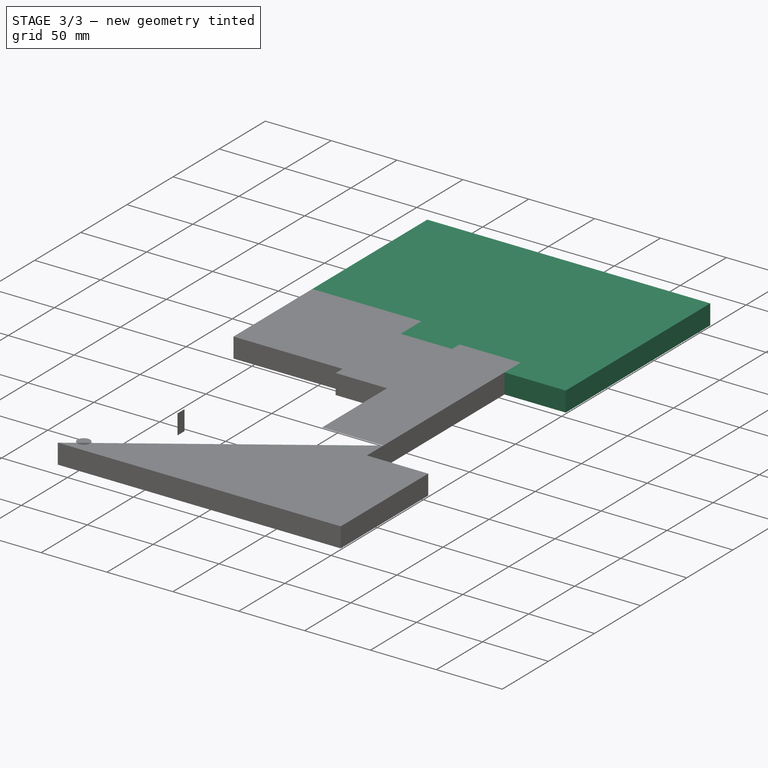
[diagram: stage 3 of 3 — iso view after this stage's code; geometry added in this stage tinted green]
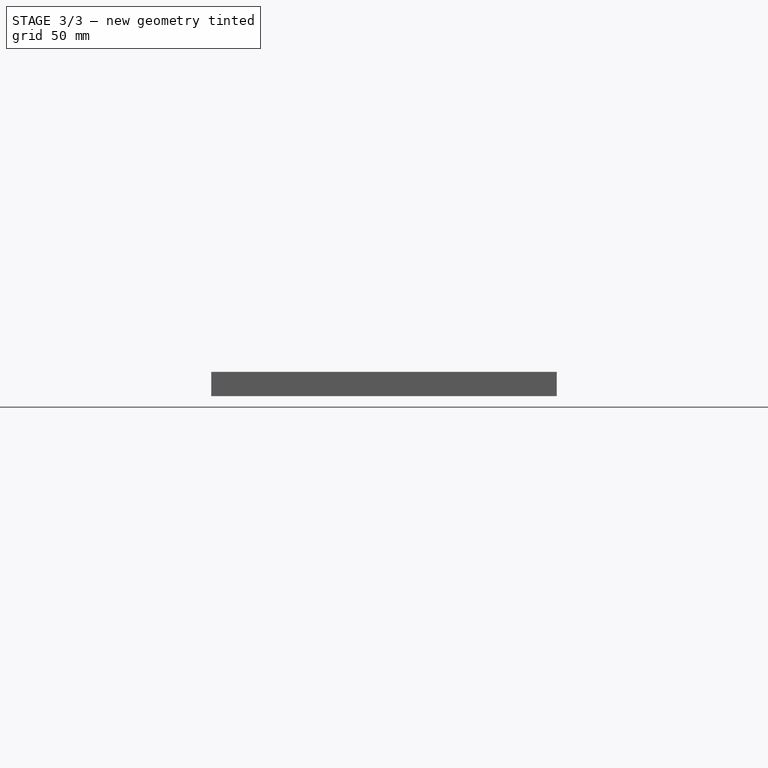
[diagram: stage 3 of 3 — front view after this stage's code; geometry added in this stage tinted green]
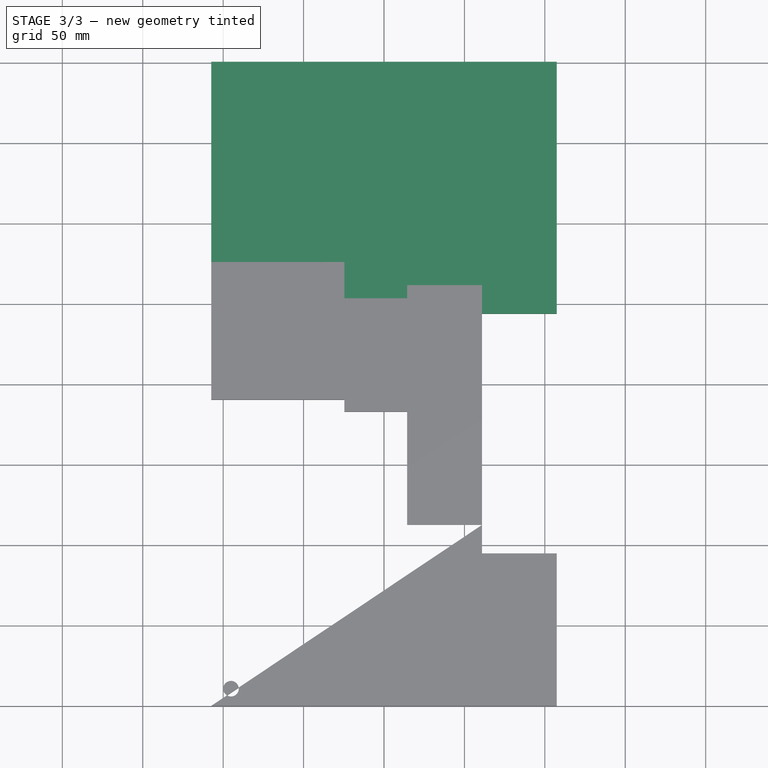
[diagram: stage 3 of 3 — top view after this stage's code; geometry added in this stage tinted green]
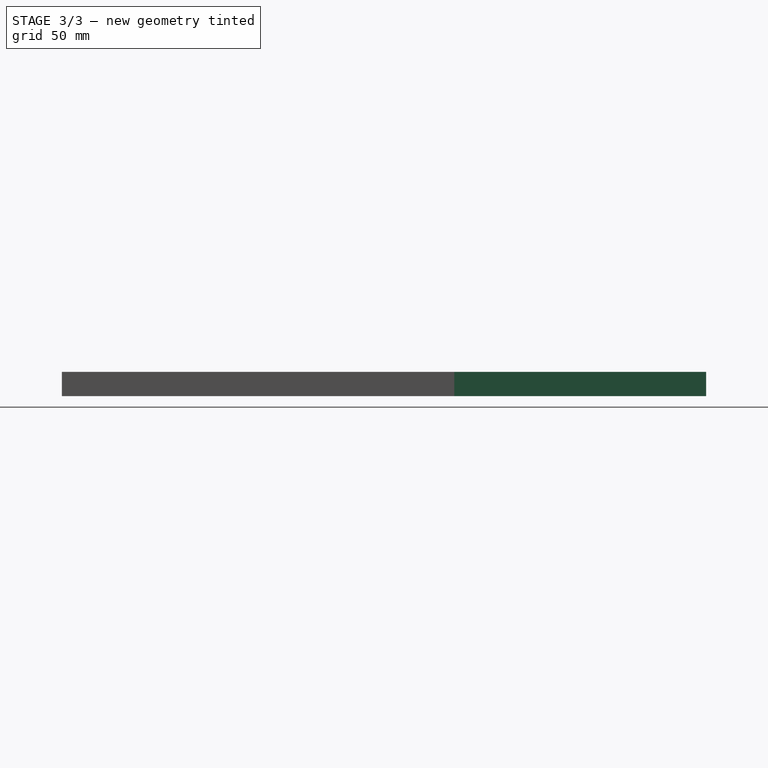
[diagram: stage 3 of 3 — right view after this stage's code; geometry added in this stage tinted green]
FEATURE [Sketcher::SketchObject] Sketch005
  AttachmentSupport = -> [Pad002]
  ExternalGeometry = -> [Pad002]
  FullyConstrained = false
  MapMode = 5
  Placement = pos=(0,276,0) rot=(0,0.707107,0.707107;3.14159rad)
  expr: Constraints[64] = <<vars>>.plot_short
  expr: Constraints[65] = <<vars>>.plot_end
  expr: Constraints[66] = <<vars>>.plot_border
  expr: Constraints[67] = <<vars>>.plot_border
  expr: Constraints[68] = <<vars>>.plot_short + <<vars>>.plot_border * 2
  expr: Constraints[69] = <<vars>>.plot_end + <<vars>>.plot_border * 2
  expr: Constraints[70] = <<vars>>.plot_end + <<vars>>.plot_border * 2
  expr: Constraints[71] = <<vars>>.plot_short
  expr: Constraints[72] = <<vars>>.plot_end
  expr: Constraints[73] = <<vars>>.plot_border
  expr: Constraints[74] = <<vars>>.plot_border
  expr: Constraints[75] = <<vars>>.plot_short + <<vars>>.plot_border * 2
  expr: Constraints[76] = <<vars>>.plot_end
  expr: Constraints[77] = <<vars>>.plot_short
  expr: Constraints[78] = <<vars>>.plot_short + <<vars>>.plot_border * 2
  expr: Constraints[79] = <<vars>>.plot_end + <<vars>>.plot_border * 2
  expr: Constraints[80] = <<vars>>.plot_short + <<vars>>.plot_border * 2
  expr: Constraints[81] = <<vars>>.plot_end
  expr: Constraints[82] = <<vars>>.plot_end + <<vars>>.plot_border * 2
  expr: Constraints[83] = <<vars>>.plot_short
  expr: Constraints[84] = <<vars>>.plot_border
  expr: Constraints[85] = <<vars>>.plot_border
  expr: Constraints[87] = <<vars>>.plot_border
  expr: Constraints[88] = <<vars>>.plot_border
  expr: Constraints[90] = <<vars>>.plot_gap_large
  expr: Constraints[91] = <<vars>>.plot_gap_large
  expr: Constraints[92] = <<vars>>.plot_gap_large
  sketch-geometry (32):
    g0: LineSegment StartX=-92.4 StartY=265 StartZ=0 EndX=-92.4 EndY=239 EndZ=0
    g1: LineSegment StartX=-92.4 StartY=239 StartZ=0 EndX=-30.1 EndY=239 EndZ=0
    g2: LineSegment StartX=-30.1 StartY=239 StartZ=0 EndX=-30.1 EndY=265 EndZ=0
    g3: LineSegment StartX=-30.1 StartY=265 StartZ=0 EndX=-92.4 EndY=265 EndZ=0
    g4: LineSegment StartX=-31.1 StartY=240 StartZ=0 EndX=-31.1 EndY=264 EndZ=0
    g5: LineSegment StartX=-31.1 StartY=264 StartZ=0 EndX=-91.4 EndY=264 EndZ=0
    g6: LineSegment StartX=-91.4 StartY=264 StartZ=0 EndX=-91.4 EndY=240 EndZ=0
    g7: LineSegment StartX=-91.4 StartY=240 StartZ=0 EndX=-31.1 EndY=240 EndZ=0
    g8: LineSegment StartX=-92.4 StartY=224 StartZ=0 EndX=-92.4 EndY=198 EndZ=0
    g9: LineSegment StartX=-92.4 StartY=198 StartZ=0 EndX=-30.1 EndY=198 EndZ=0
    g10: LineSegment StartX=-30.1 StartY=198 StartZ=0 EndX=-30.1 EndY=224 EndZ=0
    g11: LineSegment StartX=-30.1 StartY=224 StartZ=0 EndX=-92.4 EndY=224 EndZ=0
    g12: LineSegment StartX=-31.1 StartY=199 StartZ=0 EndX=-31.1 EndY=223 EndZ=0
    g13: LineSegment StartX=-31.1 StartY=223 StartZ=0 EndX=-91.4 EndY=223 EndZ=0
    g14: LineSegment StartX=-91.4 StartY=223 StartZ=0 EndX=-91.4 EndY=199 EndZ=0
    g15: LineSegment StartX=-91.4 StartY=199 StartZ=0 EndX=-31.1 EndY=199 EndZ=0
    g16: LineSegment StartX=-15.1 StartY=249.05 StartZ=0 EndX=-15.1 EndY=186.75 EndZ=0
    g17: LineSegment StartX=-15.1 StartY=186.75 StartZ=0 EndX=10.9 EndY=186.75 EndZ=0
    g18: LineSegment StartX=10.9 StartY=186.75 StartZ=0 EndX=10.9 EndY=249.05 EndZ=0
    g19: LineSegment StartX=10.9 StartY=249.05 StartZ=0 EndX=-15.1 EndY=249.05 EndZ=0
    g20: LineSegment StartX=9.9 StartY=187.75 StartZ=0 EndX=9.9 EndY=248.05 EndZ=0
    g21: LineSegment StartX=9.9 StartY=248.05 StartZ=0 EndX=-14.1 EndY=248.05 EndZ=0
    g22: LineSegment StartX=-14.1 StartY=248.05 StartZ=0 EndX=-14.1 EndY=187.75 EndZ=0
    g23: LineSegment StartX=-14.1 StartY=187.75 StartZ=0 EndX=9.9 EndY=187.75 EndZ=0
    g24: LineSegment StartX=25.9 StartY=249.05 StartZ=0 EndX=25.9 EndY=186.75 EndZ=0
    g25: LineSegment StartX=25.9 StartY=186.75 StartZ=0 EndX=51.9 EndY=186.75 EndZ=0
    g26: LineSegment StartX=51.9 StartY=186.75 StartZ=0 EndX=51.9 EndY=249.05 EndZ=0
    g27: LineSegment StartX=51.9 StartY=249.05 StartZ=0 EndX=25.9 EndY=249.05 EndZ=0
    g28: LineSegment StartX=50.9 StartY=187.75 StartZ=0 EndX=50.9 EndY=248.05 EndZ=0
    g29: LineSegment StartX=50.9 StartY=248.05 StartZ=0 EndX=26.9 EndY=248.05 EndZ=0
    g30: LineSegment StartX=26.9 StartY=248.05 StartZ=0 EndX=26.9 EndY=187.75 EndZ=0
    g31: LineSegment StartX=26.9 StartY=187.75 StartZ=0 EndX=50.9 EndY=187.75 EndZ=0
  constraints (93):
    c: Coincident(g0,g1)
    c: Coincident(g1,g2)
    c: Coincident(g2,g3)
    c: Coincident(g3,g0)
    c: Vertical(g0)
    c: Vertical(g2)
    c: Horizontal(g1)
    c: Horizontal(g3)
    c: Coincident(g4,g5)
    c: Coincident(g5,g6)
    c: Coincident(g6,g7)
    c: Coincident(g7,g4)
    c: Vertical(g4)
    c: Vertical(g6)
    c: Horizontal(g5)
    c: Horizontal(g7)
    c: Coincident(g8,g9)
    c: Coincident(g9,g10)
    c: Coincident(g10,g11)
    c: Coincident(g11,g8)
    c: Vertical(g8)
    c: Vertical(g10)
    c: Horizontal(g9)
    c: Horizontal(g11)
    c: Coincident(g12,g13)
    c: Coincident(g13,g14)
    c: Coincident(g14,g15)
    c: Coincident(g15,g12)
    c: Vertical(g12)
    c: Vertical(g14)
    c: Horizontal(g13)
    c: Horizontal(g15)
    c: Coincident(g16,g17)
    c: Coincident(g17,g18)
    c: Coincident(g18,g19)
    c: Coincident(g19,g16)
    c: Vertical(g16)
    c: Vertical(g18)
    c: Horizontal(g17)
    c: Horizontal(g19)
    c: Coincident(g20,g21)
    c: Coincident(g21,g22)
    c: Coincident(g22,g23)
    c: Coincident(g23,g20)
    c: Vertical(g20)
    c: Vertical(g22)
    c: Horizontal(g21)
    c: Horizontal(g23)
    c: Coincident(g24,g25)
    c: Coincident(g25,g26)
    c: Coincident(g26,g27)
    c: Coincident(g27,g24)
    c: Vertical(g24)
    c: Vertical(g26)
    c: Horizontal(g25)
    c: Horizontal(g27)
    c: Coincident(g28,g29)
    c: Coincident(g29,g30)
    c: Coincident(g30,g31)
    c: Coincident(g31,g28)
    c: Vertical(g28)
    c: Vertical(g30)
    c: Horizontal(g29)
    c: Horizontal(g31)
    c: DistanceX(g5,g5) = 60.3
    c: DistanceY(g4,g4) = 24
    c: DistanceX(g0,g5) = 1
    c: DistanceY(g1,g4) = 1
    c: DistanceX(g3,g3) = 62.3
    c: DistanceY(g2,g2) = 26
    c: DistanceY(g10,g10) = 26
    c: DistanceX(g13,g13) = 60.3
    c: DistanceY(g12,g12) = 24
    c: DistanceX(g8,g13) = 1
    c: DistanceY(g9,g12) = 1
    c: DistanceX(g11,g11) = 62.3
    c: DistanceX(g29,g29) = 24
    c: DistanceY(g30,g30) = 60.3
    c: DistanceY(g26,g26) = 62.3
    c: DistanceX(g27,g27) = 26
    c: DistanceY(g16,g16) = 62.3
    c: DistanceX(g21,g21) = 24
    c: DistanceX(g19,g19) = 26
    c: DistanceY(g22,g22) = 60.3
    c: DistanceX(g16,g22) = 1
    c: DistanceY(g20,g18) = 1
    c: Horizontal(g18,g24)
    c: DistanceX(g24,g29) = 1
    c: DistanceY(g25,g28) = 1
    c: Vertical(g0,g8)
    c: DistanceY(g8,g0) = 15
    c: DistanceX(g9,g16) = 15
    c: DistanceX(g18,g24) = 15
FEATURE [PartDesign::Pocket] Pocket002
  BaseFeature = -> Pad002
  Direction = (0,-1,2e-16)
  Length = 2
  Length2 = 5
  Profile = -> Sketch005
  ReferenceAxis = -> Sketch005 [N_Axis]
  Suppressed = false
  Type = 0
FEATURE [Sketcher::SketchObject] Sketch008
  AttachmentSupport = -> [XY_Plane]
  ExternalGeometry = -> [Pocket002]
  FullyConstrained = false
  MapMode = 5
  expr: Constraints[12] = <<vars>>.plot_long + <<vars>>.plot_gap_large / 2 + <<vars>>.border
  sketch-geometry (9):
    g0: LineSegment StartX=-107.4 StartY=276 StartZ=0 EndX=-24.6 EndY=276 EndZ=0
    g1: LineSegment StartX=-24.6 StartY=276 StartZ=0 EndX=-24.6 EndY=253.5 EndZ=0
    g2: LineSegment StartX=-24.6 StartY=253.5 StartZ=0 EndX=57.15 EndY=253.5 EndZ=0
    g3: LineSegment StartX=57.15 StartY=253.5 StartZ=0 EndX=57.15 EndY=243.93 EndZ=0
    g4: LineSegment StartX=57.15 StartY=243.93 StartZ=0 EndX=60.9 EndY=243.93 EndZ=0
    g5: LineSegment StartX=60.9 StartY=243.93 StartZ=0 EndX=107.4 EndY=243.93 EndZ=0
    g6: LineSegment StartX=107.4 StartY=243.93 StartZ=0 EndX=107.4 EndY=400.56 EndZ=0
    g7: LineSegment StartX=107.4 StartY=400.56 StartZ=0 EndX=-107.4 EndY=400.56 EndZ=0
    g8: LineSegment StartX=-107.4 StartY=400.56 StartZ=0 EndX=-107.4 EndY=276 EndZ=0
  constraints (13):
    c: Coincident(g0,g1)
    c: Coincident(g1,g2)
    c: Coincident(g2,g3)
    c: Coincident(g3,g4)
    c: Coincident(g4,g5)
    c: Coincident(g5,g6)
    c: Vertical(g6)
    c: Coincident(g6,g7)
    c: Horizontal(g7)
    c: Coincident(g7,g8)
    c: Coincident(g8,g0)
    c: Vertical(g8)
    c: DistanceY(g6,g6) = 156.63
FEATURE [PartDesign::Pad] Pad003
  BaseFeature = -> Pocket002
  Direction = (0,0,1)
  Length = 15.1
  Length2 = 10
  Profile = -> Sketch008
  ReferenceAxis = -> Sketch008 [N_Axis]
  Suppressed = false
  Type = 0
  expr: Length = <<vars>>.part_height
FEATURE [Sketcher::SketchObject] Sketch007
  AttachmentSupport = -> [Pad003]
  ExternalGeometry = -> [Pad003]
  FullyConstrained = false
  MapMode = 5
  Placement = pos=(107.4,0,0) rot=(0.57735,0.57735,0.57735;2.0944rad)
  expr: Constraints[186] = <<vars>>.plot_gap_large
  expr: Constraints[187] = <<vars>>.plot_gap_large
  sketch-geometry (64):
    g0: LineSegment StartX=-92.4 StartY=391.5 StartZ=0 EndX=-92.4 EndY=365.5 EndZ=0
    g1: LineSegment StartX=-92.4 StartY=365.5 StartZ=0 EndX=-30.1 EndY=365.5 EndZ=0
    g2: LineSegment StartX=-30.1 StartY=365.5 StartZ=0 EndX=-30.1 EndY=391.5 EndZ=0
    g3: LineSegment StartX=-30.1 StartY=391.5 StartZ=0 EndX=-92.4 EndY=391.5 EndZ=0
    g4: LineSegment StartX=-31.1 StartY=366.5 StartZ=0 EndX=-31.1 EndY=390.5 EndZ=0
    g5: LineSegment StartX=-31.1 StartY=390.5 StartZ=0 EndX=-91.4 EndY=390.5 EndZ=0
    g6: LineSegment StartX=-91.4 StartY=390.5 StartZ=0 EndX=-91.4 EndY=366.5 EndZ=0
    g7: LineSegment StartX=-91.4 StartY=366.5 StartZ=0 EndX=-31.1 EndY=366.5 EndZ=0
    g8: LineSegment StartX=-92.4 StartY=350.5 StartZ=0 EndX=-92.4 EndY=324.5 EndZ=0
    g9: LineSegment StartX=-92.4 StartY=324.5 StartZ=0 EndX=-30.1 EndY=324.5 EndZ=0
    g10: LineSegment StartX=-30.1 StartY=324.5 StartZ=0 EndX=-30.1 EndY=350.5 EndZ=0
    g11: LineSegment StartX=-30.1 StartY=350.5 StartZ=0 EndX=-92.4 EndY=350.5 EndZ=0
    g12: LineSegment StartX=-31.1 StartY=325.5 StartZ=0 EndX=-31.1 EndY=349.5 EndZ=0
    g13: LineSegment StartX=-31.1 StartY=349.5 StartZ=0 EndX=-91.4 EndY=349.5 EndZ=0
    g14: LineSegment StartX=-91.4 StartY=349.5 StartZ=0 EndX=-91.4 EndY=325.5 EndZ=0
    g15: LineSegment StartX=-91.4 StartY=325.5 StartZ=0 EndX=-31.1 EndY=325.5 EndZ=0
    g16: LineSegment StartX=-92.4 StartY=309.5 StartZ=0 EndX=-92.4 EndY=283.5 EndZ=0
    g17: LineSegment StartX=-92.4 StartY=283.5 StartZ=0 EndX=-30.1 EndY=283.5 EndZ=0
    g18: LineSegment StartX=-30.1 StartY=283.5 StartZ=0 EndX=-30.1 EndY=309.5 EndZ=0
    g19: LineSegment StartX=-30.1 StartY=309.5 StartZ=0 EndX=-92.4 EndY=309.5 EndZ=0
    g20: LineSegment StartX=-91.4 StartY=308.5 StartZ=0 EndX=-91.4 EndY=284.5 EndZ=0
    g21: LineSegment StartX=-91.4 StartY=284.5 StartZ=0 EndX=-31.1 EndY=284.5 EndZ=0
    g22: LineSegment StartX=-31.1 StartY=284.5 StartZ=0 EndX=-31.1 EndY=308.5 EndZ=0
    g23: LineSegment StartX=-31.1 StartY=308.5 StartZ=0 EndX=-91.4 EndY=308.5 EndZ=0
    g24: LineSegment StartX=-15.1 StartY=257.25 StartZ=0 EndX=10.9 EndY=257.25 EndZ=0
    g25: LineSegment StartX=10.9 StartY=257.25 StartZ=0 EndX=10.9 EndY=319.55 EndZ=0
    g26: LineSegment StartX=10.9 StartY=319.55 StartZ=0 EndX=-15.1 EndY=319.55 EndZ=0
    g27: LineSegment StartX=-15.1 StartY=319.55 StartZ=0 EndX=-15.1 EndY=257.25 EndZ=0
    g28: LineSegment StartX=9.9 StartY=318.55 StartZ=0 EndX=-14.1 EndY=318.55 EndZ=0
    g29: LineSegment StartX=-14.1 StartY=318.55 StartZ=0 EndX=-14.1 EndY=258.25 EndZ=0
    g30: LineSegment StartX=-14.1 StartY=258.25 StartZ=0 EndX=9.9 EndY=258.25 EndZ=0
    g31: LineSegment StartX=9.9 StartY=258.25 StartZ=0 EndX=9.9 EndY=318.55 EndZ=0
    g32: LineSegment StartX=25.9 StartY=257.25 StartZ=0 EndX=51.9 EndY=257.25 EndZ=0
    g33: LineSegment StartX=51.9 StartY=257.25 StartZ=0 EndX=51.9 EndY=319.55 EndZ=0
    g34: LineSegment StartX=51.9 StartY=319.55 StartZ=0 EndX=25.9 EndY=319.55 EndZ=0
    g35: LineSegment StartX=25.9 StartY=319.55 StartZ=0 EndX=25.9 EndY=257.25 EndZ=0
    g36: LineSegment StartX=50.9 StartY=318.55 StartZ=0 EndX=26.9 EndY=318.55 EndZ=0
    g37: LineSegment StartX=26.9 StartY=318.55 StartZ=0 EndX=26.9 EndY=258.25 EndZ=0
    g38: LineSegment StartX=26.9 StartY=258.25 StartZ=0 EndX=50.9 EndY=258.25 EndZ=0
    g39: LineSegment StartX=50.9 StartY=258.25 StartZ=0 EndX=50.9 EndY=318.55 EndZ=0
    g40: LineSegment StartX=51.9 StartY=327.05 StartZ=0 EndX=51.9 EndY=389.35 EndZ=0
    g41: LineSegment StartX=51.9 StartY=389.35 StartZ=0 EndX=25.9 EndY=389.35 EndZ=0
    g42: LineSegment StartX=25.9 StartY=389.35 StartZ=0 EndX=25.9 EndY=327.05 EndZ=0
    g43: LineSegment StartX=25.9 StartY=327.05 StartZ=0 EndX=51.9 EndY=327.05 EndZ=0
    g44: LineSegment StartX=26.9 StartY=388.35 StartZ=0 EndX=26.9 EndY=328.05 EndZ=0
    g45: LineSegment StartX=26.9 StartY=328.05 StartZ=0 EndX=50.9 EndY=328.05 EndZ=0
    g46: LineSegment StartX=50.9 StartY=328.05 StartZ=0 EndX=50.9 EndY=388.35 EndZ=0
    g47: LineSegment StartX=50.9 StartY=388.35 StartZ=0 EndX=26.9 EndY=388.35 EndZ=0
    g48: LineSegment StartX=10.9 StartY=389.35 StartZ=0 EndX=-15.1 EndY=389.35 EndZ=0
    g49: LineSegment StartX=-15.1 StartY=389.35 StartZ=0 EndX=-15.1 EndY=327.05 EndZ=0
    g50: LineSegment StartX=-15.1 StartY=327.05 StartZ=0 EndX=10.9 EndY=327.05 EndZ=0
    g51: LineSegment StartX=10.9 StartY=327.05 StartZ=0 EndX=10.9 EndY=389.35 EndZ=0
    g52: LineSegment StartX=-14.1 StartY=328.05 StartZ=0 EndX=9.9 EndY=328.05 EndZ=0
    g53: LineSegment StartX=9.9 StartY=328.05 StartZ=0 EndX=9.9 EndY=388.35 EndZ=0
    g54: LineSegment StartX=9.9 StartY=388.35 StartZ=0 EndX=-14.1 EndY=388.35 EndZ=0
    g55: LineSegment StartX=-14.1 StartY=388.35 StartZ=0 EndX=-14.1 EndY=328.05 EndZ=0
    g56: LineSegment StartX=66.9 StartY=251.43 StartZ=0 EndX=92.9 EndY=251.43 EndZ=0
    g57: LineSegment StartX=92.9 StartY=251.43 StartZ=0 EndX=92.9 EndY=387.56 EndZ=0
    g58: LineSegment StartX=92.9 StartY=387.56 StartZ=0 EndX=66.9 EndY=387.56 EndZ=0
    g59: LineSegment StartX=66.9 StartY=387.56 StartZ=0 EndX=66.9 EndY=251.43 EndZ=0
    g60: LineSegment StartX=91.9 StartY=386.56 StartZ=0 EndX=67.9 EndY=386.56 EndZ=0
    g61: LineSegment StartX=67.9 StartY=386.56 StartZ=0 EndX=67.9 EndY=252.43 EndZ=0
    g62: LineSegment StartX=67.9 StartY=252.43 StartZ=0 EndX=91.9 EndY=252.43 EndZ=0
    g63: LineSegment StartX=91.9 StartY=252.43 StartZ=0 EndX=91.9 EndY=386.56 EndZ=0
  constraints (188):
    c: Coincident(g0,g1)
    c: Coincident(g1,g2)
    c: Coincident(g2,g3)
    c: Coincident(g3,g0)
    c: Vertical(g0)
    c: Vertical(g2)
    c: Horizontal(g1)
    c: Horizontal(g3)
    c: Coincident(g4,g5)
    c: Coincident(g5,g6)
    c: Coincident(g6,g7)
    c: Coincident(g7,g4)
    c: Vertical(g4)
    c: Vertical(g6)
    c: Horizontal(g5)
    c: Horizontal(g7)
    c: Coincident(g8,g9)
    c: Coincident(g9,g10)
    c: Coincident(g10,g11)
    c: Coincident(g11,g8)
    c: Vertical(g8)
    c: Vertical(g10)
    c: Horizontal(g9)
    c: Horizontal(g11)
    c: Coincident(g12,g13)
    c: Coincident(g13,g14)
    c: Coincident(g14,g15)
    c: Coincident(g15,g12)
    c: Vertical(g12)
    c: Vertical(g14)
    c: Horizontal(g13)
    c: Horizontal(g15)
    c: Coincident(g16,g17)
    c: Coincident(g17,g18)
    c: Coincident(g18,g19)
    c: Coincident(g19,g16)
    c: Vertical(g16)
    c: Vertical(g18)
    c: Horizontal(g17)
    c: Horizontal(g19)
    c: Coincident(g20,g21)
    c: Coincident(g21,g22)
    c: Coincident(g22,g23)
    c: Coincident(g23,g20)
    c: Vertical(g20)
    c: Vertical(g22)
    c: Horizontal(g21)
    c: Horizontal(g23)
    c: DistanceY(g18,g18) = 26
    c: DistanceY(g22,g22) = 24
    c: DistanceY(g22,g18) = 1
    c: DistanceX(g16,g20) = 1
    c: DistanceX(g19,g19) = 62.3
    c: DistanceX(g23,g23) = 60.3
    c: Equal(g23,g15)
    c: Equal(g19,g9)
    c: DistanceY(g8,g14) = 1
    c: DistanceX(g12,g10) = 1
    c: DistanceY(g12,g12) = 24
    c: DistanceY(g10,g10) = 26
    c: Vertical(g8,g16)
    c: DistanceY(g16,g8) = 15
    c: DistanceY(g6,g6) = 24
    c: DistanceX(g5,g5) = 60.3
    c: DistanceY(g5,g0) = 1
    c: DistanceY(g0,g0) = 26
    c: DistanceX(g3,g3) = 62.3
    c: DistanceX(g4,g1) = 1
    c: Vertical(g0,g8)
    c: DistanceY(g8,g0) = 15
    c: Coincident(g24,g25)
    c: Coincident(g25,g26)
    c: Coincident(g26,g27)
    c: Coincident(g27,g24)
    c: Horizontal(g24)
    c: Horizontal(g26)
    c: Vertical(g25)
    c: Vertical(g27)
    c: Coincident(g28,g29)
    c: Coincident(g29,g30)
    c: Coincident(g30,g31)
    c: Coincident(g31,g28)
    c: Horizontal(g28)
    c: Horizontal(g30)
    c: Vertical(g29)
    c: Vertical(g31)
    c: Coincident(g32,g33)
    c: Coincident(g33,g34)
    c: Coincident(g34,g35)
    c: Coincident(g35,g32)
    c: Horizontal(g32)
    c: Horizontal(g34)
    c: Vertical(g33)
    c: Vertical(g35)
    c: Coincident(g36,g37)
    c: Coincident(g37,g38)
    c: Coincident(g38,g39)
    c: Coincident(g39,g36)
    c: Horizontal(g36)
    c: Horizontal(g38)
    c: Vertical(g37)
    c: Vertical(g39)
    c: Coincident(g40,g41)
    c: Coincident(g41,g42)
    c: Coincident(g42,g43)
    c: Coincident(g43,g40)
    c: Vertical(g40)
    c: Vertical(g42)
    c: Horizontal(g41)
    c: Horizontal(g43)
    c: Coincident(g44,g45)
    c: Coincident(g45,g46)
    c: Coincident(g46,g47)
    c: Coincident(g47,g44)
    c: Vertical(g44)
    c: Vertical(g46)
    c: Horizontal(g45)
    c: Horizontal(g47)
    c: Coincident(g48,g49)
    c: Coincident(g49,g50)
    c: Coincident(g50,g51)
    c: Coincident(g51,g48)
    c: Horizontal(g48)
    c: Horizontal(g50)
    c: Vertical(g49)
    c: Vertical(g51)
    c: Coincident(g52,g53)
    c: Coincident(g53,g54)
    c: Coincident(g54,g55)
    c: Coincident(g55,g52)
    c: Horizontal(g52)
    c: Horizontal(g54)
    c: Vertical(g53)
    c: Vertical(g55)
    c: DistanceY(g29,g29) = 60.3
    c: Equal(g29,g55)
    c: Equal(g55,g44)
    c: Equal(g44,g37)
    c: DistanceX(g28,g28) = 24
    c: Equal(g28,g52)
    c: Equal(g52,g45)
    c: Equal(g45,g36)
    c: DistanceY(g27,g27) = 62.3
    c: DistanceX(g26,g26) = 26
    c: DistanceX(g26,g28) = 1
    c: DistanceY(g24,g30) = 1
    c: Equal(g27,g49)
    c: Equal(g49,g42)
    c: Equal(g42,g35)
    c: Equal(g26,g50)
    c: Equal(g50,g43)
    c: Equal(g43,g34)
    c: DistanceX(g52,g50) = 1
    c: DistanceX(g45,g40) = 1
    c: DistanceX(g38,g32) = 1
    c: DistanceY(g36,g34) = 1
    c: DistanceY(g54,g48) = 1
    c: DistanceY(g44,g41) = 1
    c: Vertical(g26,g49)
    c: Vertical(g34,g42)
    c: Horizontal(g25,g34)
    c: Horizontal(g50,g42)
    c: DistanceY(g26,g49) = 7.5
    c: DistanceX(g24,g32) = 15
    c: Coincident(g56,g57)
    c: Coincident(g57,g58)
    c: Coincident(g58,g59)
    c: Coincident(g59,g56)
    c: Horizontal(g56)
    c: Horizontal(g58)
    c: Vertical(g57)
    c: Vertical(g59)
    c: Coincident(g60,g61)
    c: Coincident(g61,g62)
    c: Coincident(g62,g63)
    c: Coincident(g63,g60)
    c: Horizontal(g60)
    c: Horizontal(g62)
    c: Vertical(g61)
    c: Vertical(g63)
    c: DistanceX(g60,g60) = 24
    c: DistanceX(g58,g58) = 26
    c: DistanceY(g63,g63) = 134.13
    c: DistanceY(g57,g57) = 136.13
    c: DistanceX(g60,g57) = 1
    c: DistanceY(g56,g61) = 1
    c: DistanceX(g17,g24) = 15
    c: DistanceX(g32,g56) = 15
FEATURE [PartDesign::Pocket] Pocket003
  BaseFeature = -> Pad003
  Direction = (-1,0,0)
  Length = 2
  Length2 = 5
  Profile = -> Sketch007
  ReferenceAxis = -> Sketch007 [N_Axis]
  Suppressed = false
  Type = 0
FEATURE [PartDesign::Body] Body
  Group = -> [Sketch,Pad,Sketch001,Pocket,Sketch002,Pad001,Sketch003,Pocket001,Sketch004,Pad002,Sketch005,Pocket002,Sketch008,Pad003,Sketch007,Pocket003]
  Origin = -> Origin
  Tip = -> Pocket003
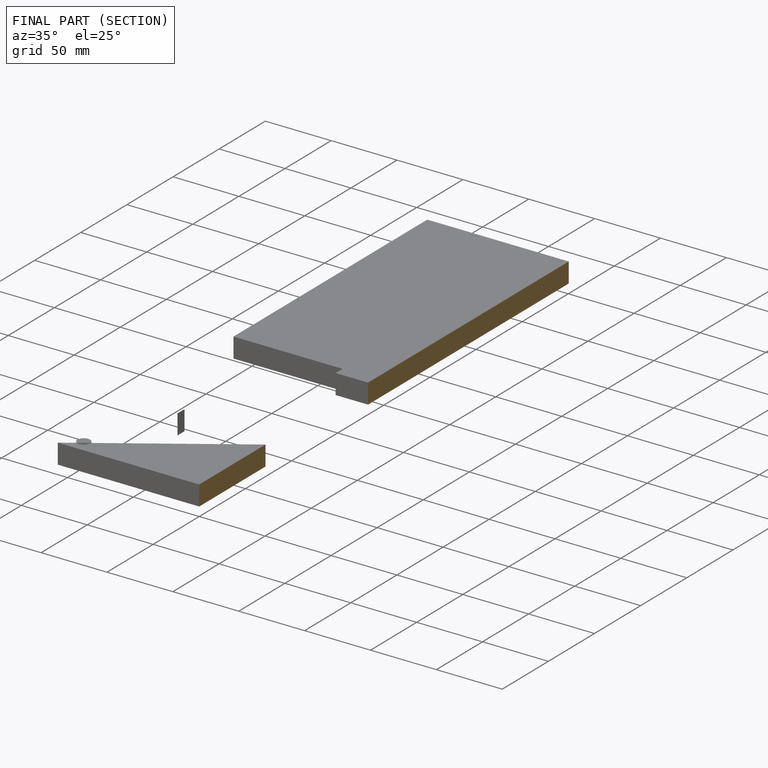
[diagram: finished part — half-section view (interior)]
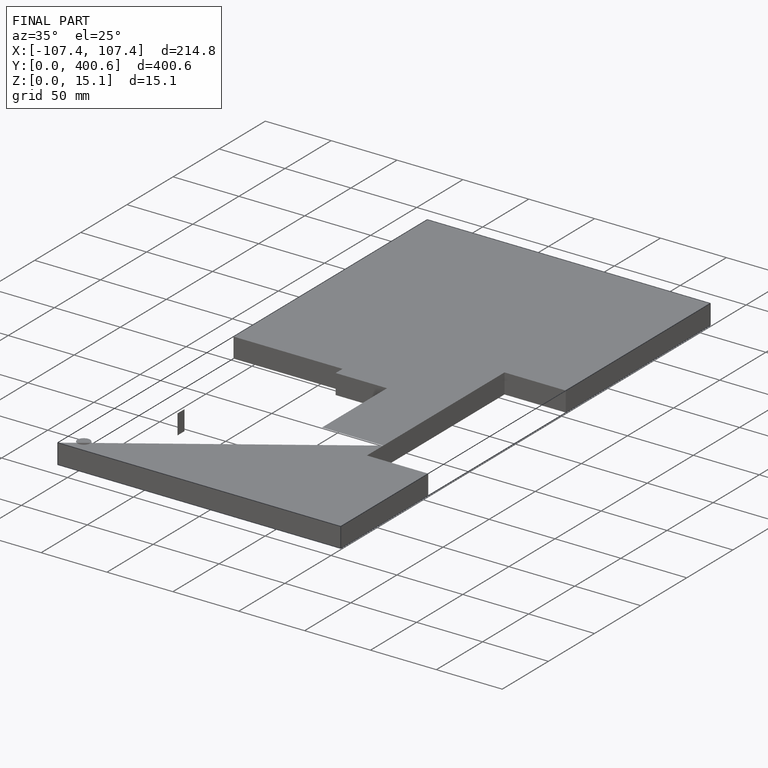
[diagram: finished part — iso view with bounding-box wireframe]
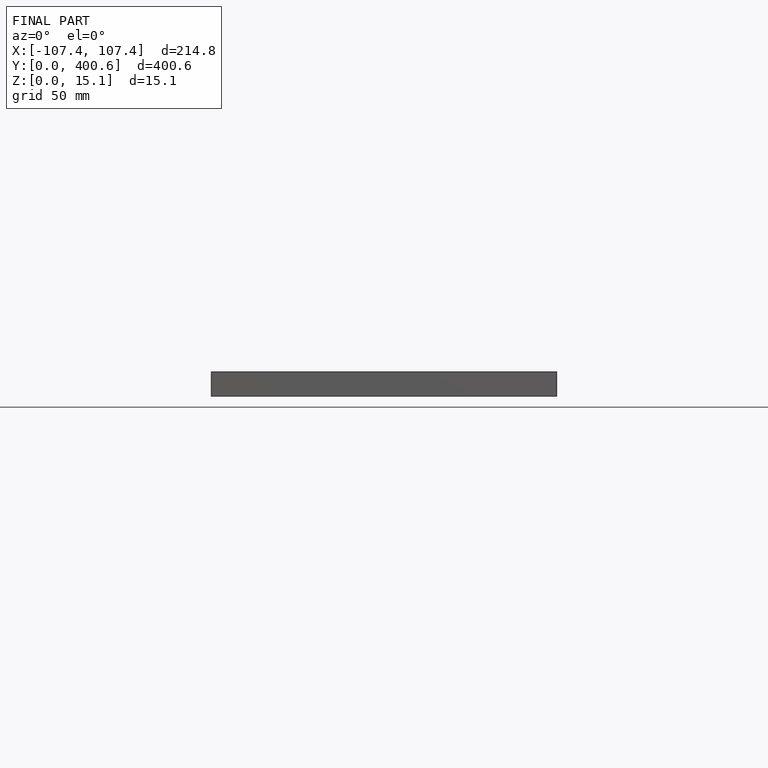
[diagram: finished part — front view with bounding-box wireframe]
